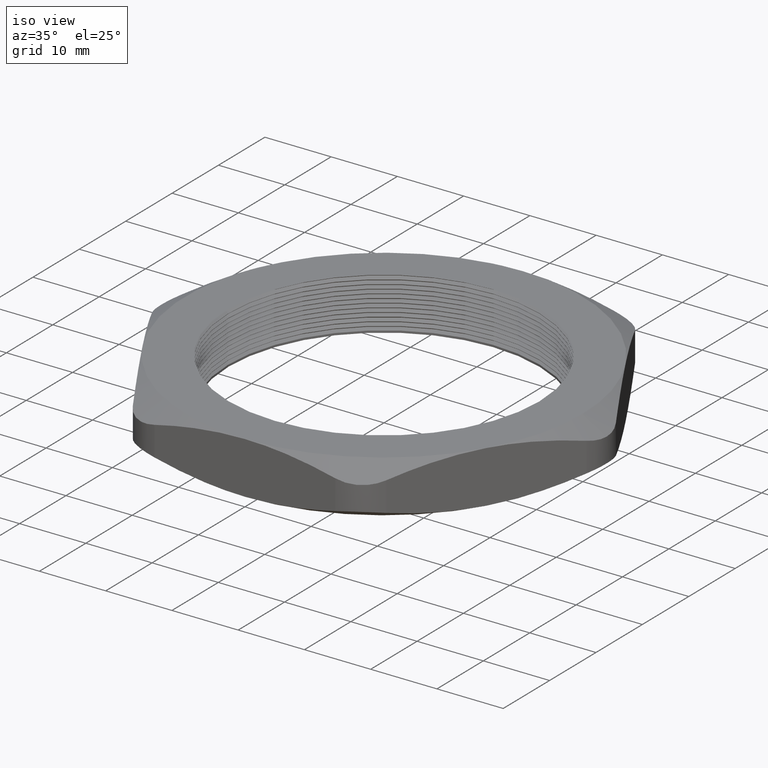
[diagram: clean part render]
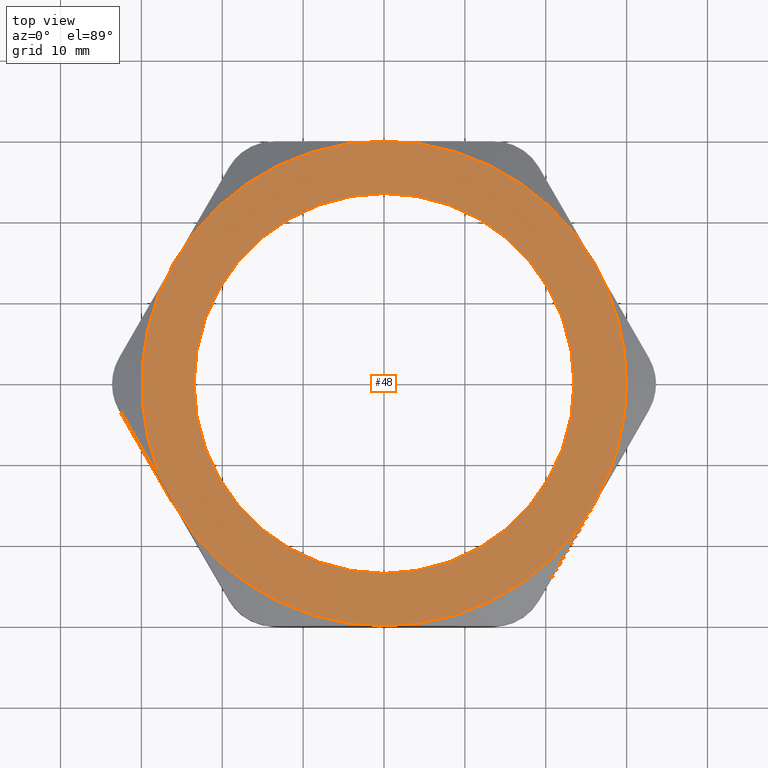
[diagram: tour spotlight — one face highlighted and labeled with its STEP entity id]
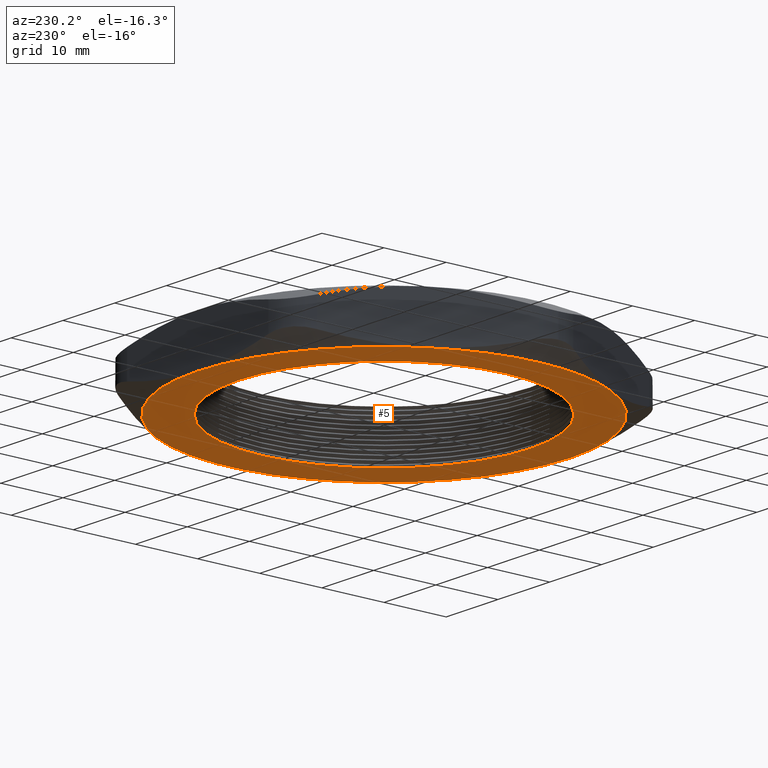
[diagram: tour spotlight — one face highlighted and labeled with its STEP entity id]
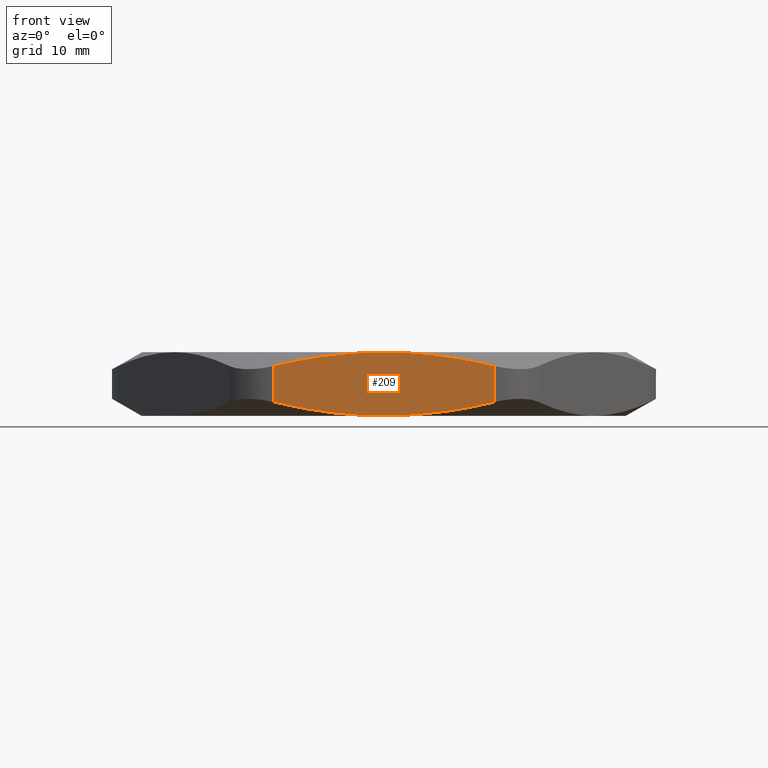
[diagram: tour spotlight — one face highlighted and labeled with its STEP entity id]
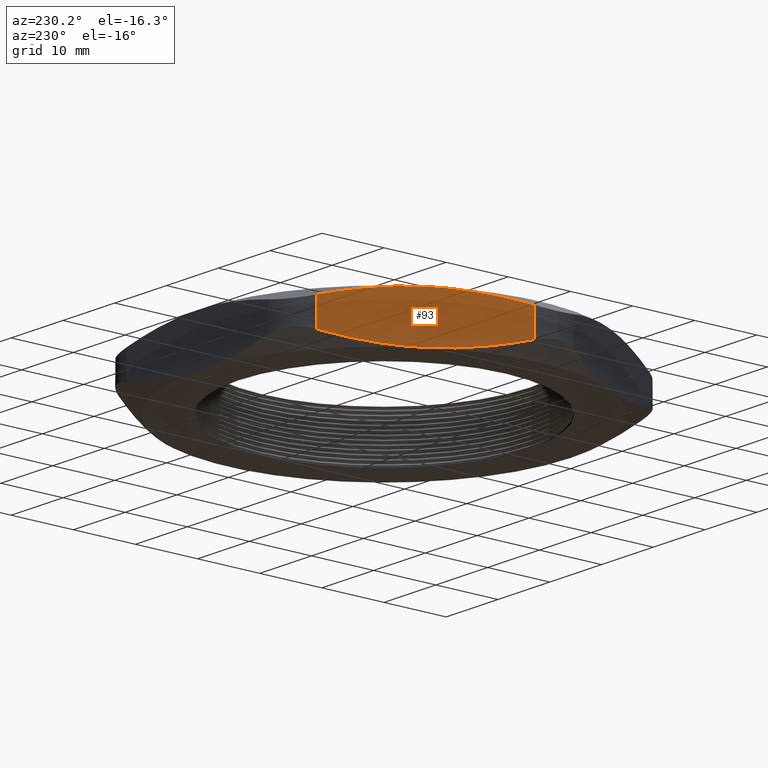
[diagram: tour spotlight — one face highlighted and labeled with its STEP entity id]
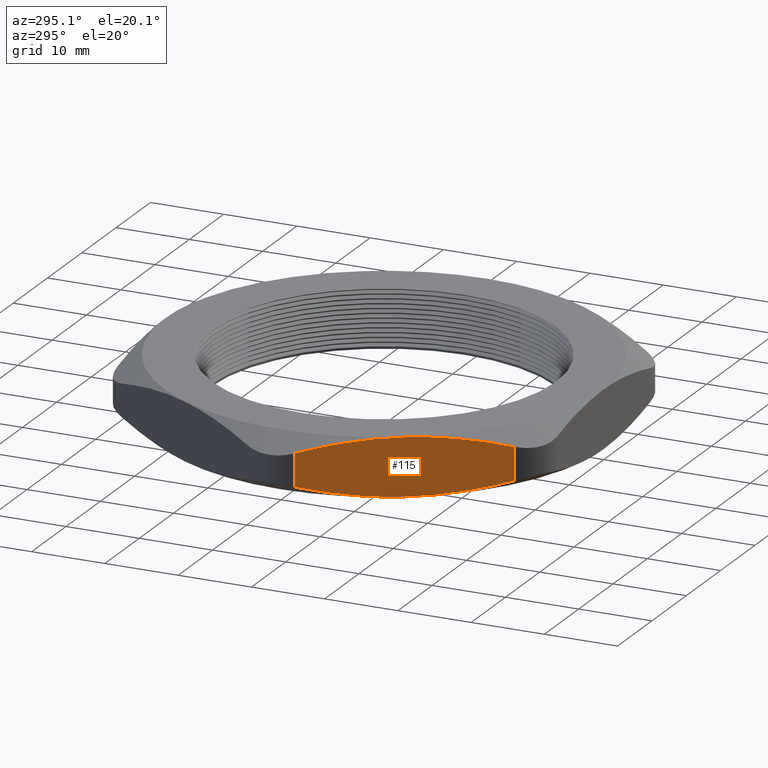
[diagram: tour spotlight — one face highlighted and labeled with its STEP entity id]
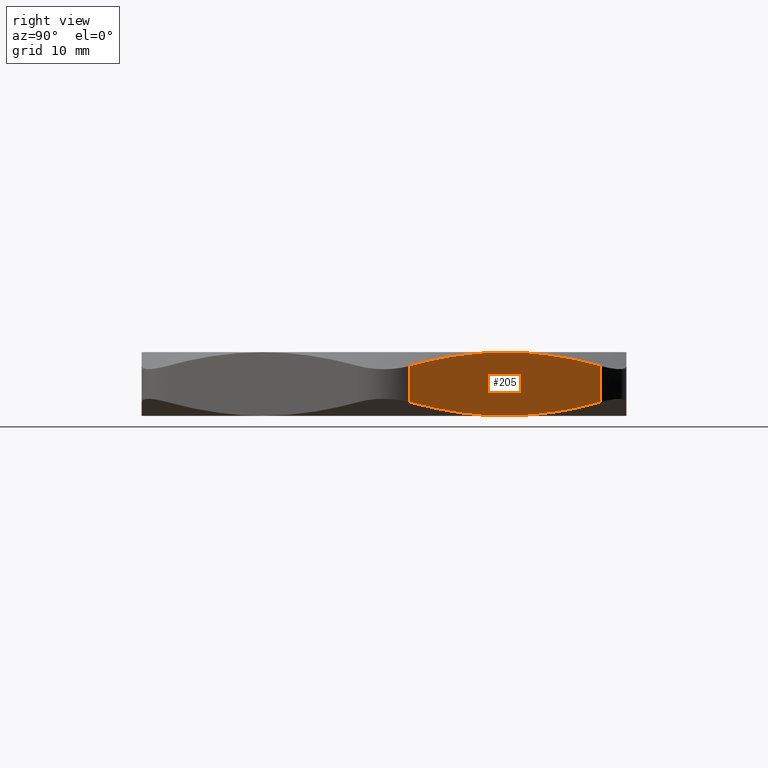
[diagram: tour spotlight — one face highlighted and labeled with its STEP entity id]
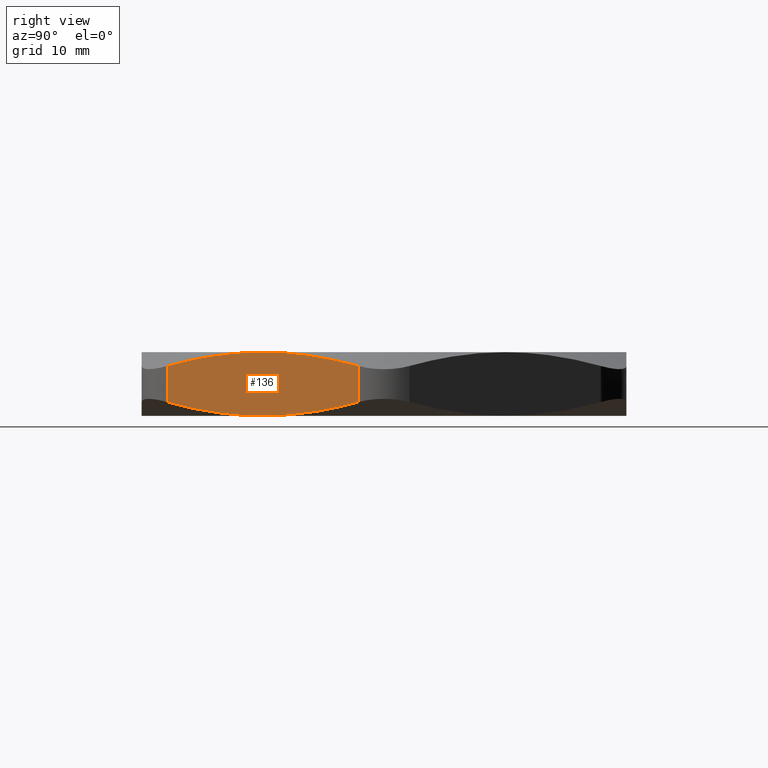
[diagram: tour spotlight — one face highlighted and labeled with its STEP entity id]
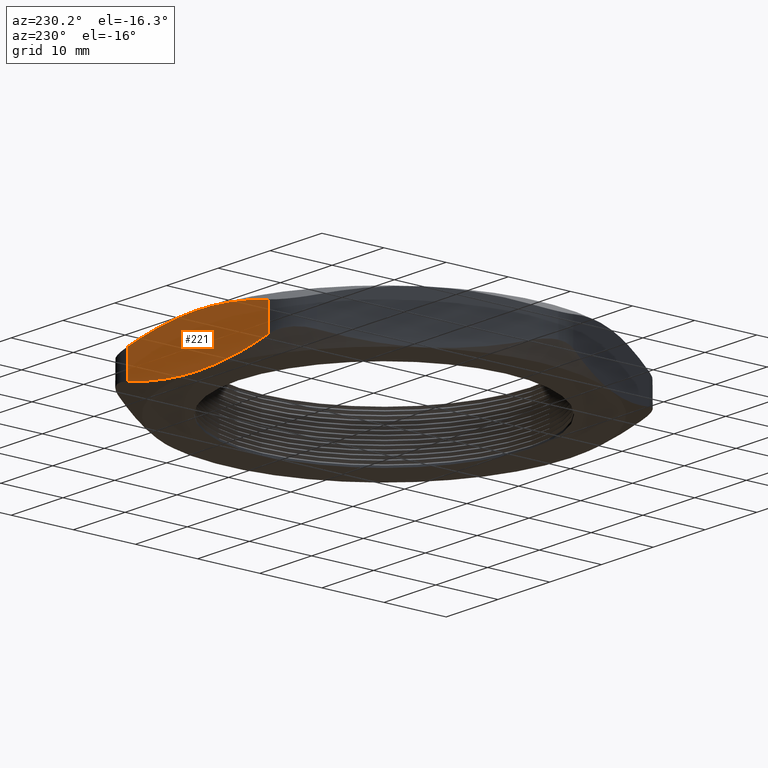
[diagram: tour spotlight — one face highlighted and labeled with its STEP entity id]
A machine part: a face-by-face anatomy tour. The part has 101 B-rep faces; the first image is the clean iso view, then the 8 largest visible faces are spotlighted one at a time (largest first), each with its STEP entity span.

Face 1 — top view, entity #48. In plain terms, the highlighted planar face has unit normal (0, 0, -1).
Definition (entity closure, byte-faithful):
#34 = ORIENTED_EDGE ( 'NONE', *, *, #36, .T. ) ;
#36 = EDGE_CURVE ( 'NONE', #146, #242, #711, .T. ) ;
#37 = ORIENTED_EDGE ( 'NONE', *, *, #38, .T. ) ;
#38 = EDGE_CURVE ( 'NONE', #76, #146, #693, .T. ) ;
#39 = EDGE_CURVE ( 'NONE', #216, #76, #688, .T. ) ;
#40 = EDGE_LOOP ( 'NONE', ( #41, #37, #34, #310, #67, #63, #65 ) ) ;
#41 = ORIENTED_EDGE ( 'NONE', *, *, #39, .T. ) ;
#42 = ORIENTED_EDGE ( 'NONE', *, *, #43, .F. ) ;
#43 = EDGE_CURVE ( 'NONE', #2820, #2819, #683, .T. ) ;
#48 = ADVANCED_FACE ( 'NONE', ( #735, #734 ), #733, .F. ) ;
#49 = EDGE_LOOP ( 'NONE', ( #50, #42 ) ) ;
#50 = ORIENTED_EDGE ( 'NONE', *, *, #2815, .F. ) ;
#62 = EDGE_CURVE ( 'NONE', #2813, #216, #762, .T. ) ;
#63 = ORIENTED_EDGE ( 'NONE', *, *, #2811, .T. ) ;
#65 = ORIENTED_EDGE ( 'NONE', *, *, #62, .T. ) ;
#67 = ORIENTED_EDGE ( 'NONE', *, *, #81, .T. ) ;
#76 = VERTEX_POINT ( 'NONE', #799 ) ;
#81 = EDGE_CURVE ( 'NONE', #145, #2812, #793, .T. ) ;
#145 = VERTEX_POINT ( 'NONE', #933 ) ;
#146 = VERTEX_POINT ( 'NONE', #935 ) ;
#216 = VERTEX_POINT ( 'NONE', #1134 ) ;
#242 = VERTEX_POINT ( 'NONE', #1185 ) ;
#310 = ORIENTED_EDGE ( 'NONE', *, *, #346, .T. ) ;
#346 = EDGE_CURVE ( 'NONE', #242, #145, #1390, .T. ) ;
#682 = AXIS2_PLACEMENT_3D ( 'NONE', #743, #742, #741 ) ;
#683 = CIRCLE ( 'NONE', #682, 0.9250000000000002700 ) ;
#684 = DIRECTION ( 'NONE',  ( 1.000000000000000000, 0.0000000000000000000, 0.0000000000000000000 ) ) ;
#685 = DIRECTION ( 'NONE',  ( 0.0000000000000000000, 0.0000000000000000000, 1.000000000000000000 ) ) ;
#686 = CARTESIAN_POINT ( 'NONE',  ( 0.0000000000000000000, 0.0000000000000000000, 0.3100000000000000000 ) ) ;
#687 = AXIS2_PLACEMENT_3D ( 'NONE', #686, #685, #684 ) ;
#688 = CIRCLE ( 'NONE', #687, 1.179999999999999900 ) ;
#689 = DIRECTION ( 'NONE',  ( 1.000000000000000000, 0.0000000000000000000, 0.0000000000000000000 ) ) ;
#690 = DIRECTION ( 'NONE',  ( 0.0000000000000000000, 0.0000000000000000000, 1.000000000000000000 ) ) ;
#691 = CARTESIAN_POINT ( 'NONE',  ( 0.0000000000000000000, 0.0000000000000000000, 0.3100000000000000000 ) ) ;
#692 = AXIS2_PLACEMENT_3D ( 'NONE', #691, #690, #689 ) ;
#693 = CIRCLE ( 'NONE', #692, 1.179999999999999900 ) ;
#708 = DIRECTION ( 'NONE',  ( 1.000000000000000000, 0.0000000000000000000, 0.0000000000000000000 ) ) ;
#709 = DIRECTION ( 'NONE',  ( 0.0000000000000000000, 0.0000000000000000000, 1.000000000000000000 ) ) ;
#710 = AXIS2_PLACEMENT_3D ( 'NONE', #713, #709, #708 ) ;
#711 = CIRCLE ( 'NONE', #710, 1.179999999999999900 ) ;
#713 = CARTESIAN_POINT ( 'NONE',  ( 0.0000000000000000000, 0.0000000000000000000, 0.3100000000000000000 ) ) ;
#729 = DIRECTION ( 'NONE',  ( -1.000000000000000000, 0.0000000000000000000, 0.0000000000000000000 ) ) ;
#730 = DIRECTION ( 'NONE',  ( 0.0000000000000000000, 0.0000000000000000000, -1.000000000000000000 ) ) ;
#731 = CARTESIAN_POINT ( 'NONE',  ( 5.463695987328526400E-016, 2.359999999999999900, 0.3100000000000000000 ) ) ;
#732 = AXIS2_PLACEMENT_3D ( 'NONE', #731, #730, #729 ) ;
#733 = PLANE ( 'NONE',  #732 ) ;
#734 = FACE_OUTER_BOUND ( 'NONE', #40, .T. ) ;
#735 = FACE_BOUND ( 'NONE', #49, .T. ) ;
#741 = DIRECTION ( 'NONE',  ( 1.000000000000000000, 0.0000000000000000000, 0.0000000000000000000 ) ) ;
#742 = DIRECTION ( 'NONE',  ( 0.0000000000000000000, 0.0000000000000000000, 1.000000000000000000 ) ) ;
#743 = CARTESIAN_POINT ( 'NONE',  ( 0.0000000000000000000, 0.0000000000000000000, 0.3100000000000000000 ) ) ;
#758 = DIRECTION ( 'NONE',  ( 1.000000000000000000, 0.0000000000000000000, 0.0000000000000000000 ) ) ;
#759 = DIRECTION ( 'NONE',  ( 0.0000000000000000000, 0.0000000000000000000, 1.000000000000000000 ) ) ;
#760 = CARTESIAN_POINT ( 'NONE',  ( 0.0000000000000000000, 0.0000000000000000000, 0.3100000000000000000 ) ) ;
#761 = AXIS2_PLACEMENT_3D ( 'NONE', #760, #759, #758 ) ;
#762 = CIRCLE ( 'NONE', #761, 1.179999999999999900 ) ;
#789 = DIRECTION ( 'NONE',  ( 1.000000000000000000, 0.0000000000000000000, 0.0000000000000000000 ) ) ;
#790 = DIRECTION ( 'NONE',  ( 0.0000000000000000000, 0.0000000000000000000, 1.000000000000000000 ) ) ;
#791 = CARTESIAN_POINT ( 'NONE',  ( 0.0000000000000000000, 0.0000000000000000000, 0.3100000000000000000 ) ) ;
#792 = AXIS2_PLACEMENT_3D ( 'NONE', #791, #790, #789 ) ;
#793 = CIRCLE ( 'NONE', #792, 1.179999999999999900 ) ;
#799 = CARTESIAN_POINT ( 'NONE',  ( -1.021909976465637600, 0.5900000000000003000, 0.3100000000000000000 ) ) ;
#933 = CARTESIAN_POINT ( 'NONE',  ( 1.021909976465637600, -0.5899999999999999700, 0.3100000000000000000 ) ) ;
#935 = CARTESIAN_POINT ( 'NONE',  ( -1.021909976465638300, -0.5899999999999997500, 0.3100000000000000000 ) ) ;
#1134 = CARTESIAN_POINT ( 'NONE',  ( 2.365849761790801500E-016, 1.179999999999999900, 0.3100000000000000000 ) ) ;
#1185 = CARTESIAN_POINT ( 'NONE',  ( 0.0000000000000000000, -1.179999999999999700, 0.3100000000000000000 ) ) ;
#1386 = DIRECTION ( 'NONE',  ( 1.000000000000000000, 0.0000000000000000000, 0.0000000000000000000 ) ) ;
#1387 = DIRECTION ( 'NONE',  ( 0.0000000000000000000, 0.0000000000000000000, 1.000000000000000000 ) ) ;
#1388 = CARTESIAN_POINT ( 'NONE',  ( 0.0000000000000000000, 0.0000000000000000000, 0.3100000000000000000 ) ) ;
#1389 = AXIS2_PLACEMENT_3D ( 'NONE', #1388, #1387, #1386 ) ;
#1390 = CIRCLE ( 'NONE', #1389, 1.179999999999999900 ) ;
#2400 = AXIS2_PLACEMENT_3D ( 'NONE', #2457, #2456, #2455 ) ;
#2403 = CIRCLE ( 'NONE', #2400, 1.179999999999999900 ) ;
#2441 = CARTESIAN_POINT ( 'NONE',  ( 0.9250000000000002700, 1.145044757202775500E-016, 0.3100000000000000000 ) ) ;
#2442 = CARTESIAN_POINT ( 'NONE',  ( -0.9250000000000002700, 0.0000000000000000000, 0.3100000000000000000 ) ) ;
#2448 = DIRECTION ( 'NONE',  ( 1.000000000000000000, 0.0000000000000000000, 0.0000000000000000000 ) ) ;
#2449 = DIRECTION ( 'NONE',  ( 0.0000000000000000000, 0.0000000000000000000, 1.000000000000000000 ) ) ;
#2450 = CARTESIAN_POINT ( 'NONE',  ( 0.0000000000000000000, 0.0000000000000000000, 0.3100000000000000000 ) ) ;
#2451 = AXIS2_PLACEMENT_3D ( 'NONE', #2450, #2449, #2448 ) ;
#2452 = CIRCLE ( 'NONE', #2451, 0.9250000000000002700 ) ;
#2453 = CARTESIAN_POINT ( 'NONE',  ( 1.021909976465637600, 0.5899999999999999700, 0.3100000000000000000 ) ) ;
#2454 = CARTESIAN_POINT ( 'NONE',  ( 1.179999999999999900, 0.0000000000000000000, 0.3100000000000000000 ) ) ;
#2455 = DIRECTION ( 'NONE',  ( 1.000000000000000000, 0.0000000000000000000, 0.0000000000000000000 ) ) ;
#2456 = DIRECTION ( 'NONE',  ( 0.0000000000000000000, 0.0000000000000000000, 1.000000000000000000 ) ) ;
#2457 = CARTESIAN_POINT ( 'NONE',  ( 0.0000000000000000000, 0.0000000000000000000, 0.3100000000000000000 ) ) ;
#2811 = EDGE_CURVE ( 'NONE', #2812, #2813, #2403, .T. ) ;
#2812 = VERTEX_POINT ( 'NONE', #2454 ) ;
#2813 = VERTEX_POINT ( 'NONE', #2453 ) ;
#2815 = EDGE_CURVE ( 'NONE', #2819, #2820, #2452, .T. ) ;
#2819 = VERTEX_POINT ( 'NONE', #2442 ) ;
#2820 = VERTEX_POINT ( 'NONE', #2441 ) ;

Face 2 — auxiliary view, entity #5. In plain terms, the highlighted planar face has unit normal (0, 0, -1).
Definition (entity closure, byte-faithful):
#5 = ADVANCED_FACE ( 'NONE', ( #605, #604 ), #602, .T. ) ;
#7 = ORIENTED_EDGE ( 'NONE', *, *, #2898, .T. ) ;
#10 = ORIENTED_EDGE ( 'NONE', *, *, #168, .T. ) ;
#17 = ORIENTED_EDGE ( 'NONE', *, *, #1650, .T. ) ;
#18 = EDGE_LOOP ( 'NONE', ( #7, #10 ) ) ;
#21 = EDGE_CURVE ( 'NONE', #129, #361, #632, .T. ) ;
#22 = EDGE_LOOP ( 'NONE', ( #23, #17, #397, #314, #312, #309, #54 ) ) ;
#23 = ORIENTED_EDGE ( 'NONE', *, *, #21, .T. ) ;
#54 = ORIENTED_EDGE ( 'NONE', *, *, #55, .T. ) ;
#55 = EDGE_CURVE ( 'NONE', #236, #129, #728, .T. ) ;
#129 = VERTEX_POINT ( 'NONE', #921 ) ;
#149 = VERTEX_POINT ( 'NONE', #971 ) ;
#156 = VERTEX_POINT ( 'NONE', #961 ) ;
#168 = EDGE_CURVE ( 'NONE', #2901, #2897, #994, .T. ) ;
#231 = VERTEX_POINT ( 'NONE', #1157 ) ;
#236 = VERTEX_POINT ( 'NONE', #1148 ) ;
#308 = EDGE_CURVE ( 'NONE', #231, #156, #1351, .T. ) ;
#309 = ORIENTED_EDGE ( 'NONE', *, *, #311, .T. ) ;
#311 = EDGE_CURVE ( 'NONE', #156, #236, #1346, .T. ) ;
#312 = ORIENTED_EDGE ( 'NONE', *, *, #308, .T. ) ;
#313 = EDGE_CURVE ( 'NONE', #149, #231, #1341, .T. ) ;
#314 = ORIENTED_EDGE ( 'NONE', *, *, #313, .T. ) ;
#315 = EDGE_CURVE ( 'NONE', #2800, #149, #1336, .T. ) ;
#361 = VERTEX_POINT ( 'NONE', #1477 ) ;
#397 = ORIENTED_EDGE ( 'NONE', *, *, #315, .T. ) ;
#589 = AXIS2_PLACEMENT_3D ( 'NONE', #601, #600, #645 ) ;
#600 = DIRECTION ( 'NONE',  ( 0.0000000000000000000, 0.0000000000000000000, -1.000000000000000000 ) ) ;
#601 = CARTESIAN_POINT ( 'NONE',  ( 5.463695987328526400E-016, 2.359999999999999900, 0.0000000000000000000 ) ) ;
#602 = PLANE ( 'NONE',  #589 ) ;
#604 = FACE_OUTER_BOUND ( 'NONE', #22, .T. ) ;
#605 = FACE_BOUND ( 'NONE', #18, .T. ) ;
#631 = AXIS2_PLACEMENT_3D ( 'NONE', #681, #680, #679 ) ;
#632 = CIRCLE ( 'NONE', #631, 1.179999999999999700 ) ;
#645 = DIRECTION ( 'NONE',  ( -1.000000000000000000, 0.0000000000000000000, 0.0000000000000000000 ) ) ;
#679 = DIRECTION ( 'NONE',  ( -1.000000000000000000, 0.0000000000000000000, 0.0000000000000000000 ) ) ;
#680 = DIRECTION ( 'NONE',  ( 0.0000000000000000000, 0.0000000000000000000, -1.000000000000000000 ) ) ;
#681 = CARTESIAN_POINT ( 'NONE',  ( 0.0000000000000000000, 0.0000000000000000000, 0.0000000000000000000 ) ) ;
#724 = DIRECTION ( 'NONE',  ( -1.000000000000000000, 0.0000000000000000000, 0.0000000000000000000 ) ) ;
#725 = DIRECTION ( 'NONE',  ( 0.0000000000000000000, 0.0000000000000000000, -1.000000000000000000 ) ) ;
#726 = CARTESIAN_POINT ( 'NONE',  ( 0.0000000000000000000, 0.0000000000000000000, 0.0000000000000000000 ) ) ;
#727 = AXIS2_PLACEMENT_3D ( 'NONE', #726, #725, #724 ) ;
#728 = CIRCLE ( 'NONE', #727, 1.179999999999999700 ) ;
#921 = CARTESIAN_POINT ( 'NONE',  ( -1.021909976465637600, -0.5899999999999994100, 0.0000000000000000000 ) ) ;
#961 = CARTESIAN_POINT ( 'NONE',  ( 1.021909976465637400, -0.5899999999999999700, 0.0000000000000000000 ) ) ;
#971 = CARTESIAN_POINT ( 'NONE',  ( 2.365849761790801000E-016, 1.179999999999999900, 0.0000000000000000000 ) ) ;
#990 = DIRECTION ( 'NONE',  ( 1.000000000000000000, 0.0000000000000000000, 0.0000000000000000000 ) ) ;
#991 = DIRECTION ( 'NONE',  ( 0.0000000000000000000, 0.0000000000000000000, 1.000000000000000000 ) ) ;
#992 = CARTESIAN_POINT ( 'NONE',  ( 0.0000000000000000000, 0.0000000000000000000, 0.0000000000000000000 ) ) ;
#993 = AXIS2_PLACEMENT_3D ( 'NONE', #992, #991, #990 ) ;
#994 = CIRCLE ( 'NONE', #993, 0.9250000000000002700 ) ;
#1148 = CARTESIAN_POINT ( 'NONE',  ( 0.0000000000000000000, -1.179999999999999900, 0.0000000000000000000 ) ) ;
#1157 = CARTESIAN_POINT ( 'NONE',  ( 1.021909976465637600, 0.5899999999999998600, 0.0000000000000000000 ) ) ;
#1332 = DIRECTION ( 'NONE',  ( -1.000000000000000000, 0.0000000000000000000, 0.0000000000000000000 ) ) ;
#1333 = DIRECTION ( 'NONE',  ( 0.0000000000000000000, 0.0000000000000000000, -1.000000000000000000 ) ) ;
#1334 = CARTESIAN_POINT ( 'NONE',  ( 0.0000000000000000000, 0.0000000000000000000, 0.0000000000000000000 ) ) ;
#1335 = AXIS2_PLACEMENT_3D ( 'NONE', #1334, #1333, #1332 ) ;
#1336 = CIRCLE ( 'NONE', #1335, 1.179999999999999900 ) ;
#1337 = DIRECTION ( 'NONE',  ( -1.000000000000000000, 0.0000000000000000000, 0.0000000000000000000 ) ) ;
#1338 = DIRECTION ( 'NONE',  ( 0.0000000000000000000, 0.0000000000000000000, -1.000000000000000000 ) ) ;
#1339 = CARTESIAN_POINT ( 'NONE',  ( 0.0000000000000000000, 0.0000000000000000000, 0.0000000000000000000 ) ) ;
#1340 = AXIS2_PLACEMENT_3D ( 'NONE', #1339, #1338, #1337 ) ;
#1341 = CIRCLE ( 'NONE', #1340, 1.179999999999999700 ) ;
#1342 = DIRECTION ( 'NONE',  ( -1.000000000000000000, 0.0000000000000000000, 0.0000000000000000000 ) ) ;
#1343 = DIRECTION ( 'NONE',  ( 0.0000000000000000000, 0.0000000000000000000, -1.000000000000000000 ) ) ;
#1344 = CARTESIAN_POINT ( 'NONE',  ( 0.0000000000000000000, 0.0000000000000000000, 0.0000000000000000000 ) ) ;
#1345 = AXIS2_PLACEMENT_3D ( 'NONE', #1344, #1343, #1342 ) ;
#1346 = CIRCLE ( 'NONE', #1345, 1.179999999999999700 ) ;
#1347 = DIRECTION ( 'NONE',  ( -1.000000000000000000, 0.0000000000000000000, 0.0000000000000000000 ) ) ;
#1348 = DIRECTION ( 'NONE',  ( 0.0000000000000000000, 0.0000000000000000000, -1.000000000000000000 ) ) ;
#1349 = CARTESIAN_POINT ( 'NONE',  ( 0.0000000000000000000, 0.0000000000000000000, 0.0000000000000000000 ) ) ;
#1350 = AXIS2_PLACEMENT_3D ( 'NONE', #1349, #1348, #1347 ) ;
#1351 = CIRCLE ( 'NONE', #1350, 1.179999999999999700 ) ;
#1477 = CARTESIAN_POINT ( 'NONE',  ( -1.179999999999999700, 0.0000000000000000000, 0.0000000000000000000 ) ) ;
#1650 = EDGE_CURVE ( 'NONE', #361, #2800, #1847, .T. ) ;
#1843 = DIRECTION ( 'NONE',  ( -1.000000000000000000, 0.0000000000000000000, 0.0000000000000000000 ) ) ;
#1844 = DIRECTION ( 'NONE',  ( 0.0000000000000000000, 0.0000000000000000000, -1.000000000000000000 ) ) ;
#1845 = CARTESIAN_POINT ( 'NONE',  ( 0.0000000000000000000, 0.0000000000000000000, 0.0000000000000000000 ) ) ;
#1846 = AXIS2_PLACEMENT_3D ( 'NONE', #1845, #1844, #1843 ) ;
#1847 = CIRCLE ( 'NONE', #1846, 1.179999999999999700 ) ;
#2369 = CARTESIAN_POINT ( 'NONE',  ( -1.021909976465637400, 0.5900000000000000800, 0.0000000000000000000 ) ) ;
#2594 = CARTESIAN_POINT ( 'NONE',  ( 0.9250000000000002700, 1.132798289211302000E-016, 0.0000000000000000000 ) ) ;
#2599 = DIRECTION ( 'NONE',  ( 1.000000000000000000, 0.0000000000000000000, 0.0000000000000000000 ) ) ;
#2600 = DIRECTION ( 'NONE',  ( 0.0000000000000000000, 0.0000000000000000000, 1.000000000000000000 ) ) ;
#2601 = CARTESIAN_POINT ( 'NONE',  ( 0.0000000000000000000, 0.0000000000000000000, 0.0000000000000000000 ) ) ;
#2602 = AXIS2_PLACEMENT_3D ( 'NONE', #2601, #2600, #2599 ) ;
#2603 = CIRCLE ( 'NONE', #2602, 0.9250000000000002700 ) ;
#2604 = CARTESIAN_POINT ( 'NONE',  ( -0.9250000000000002700, 0.0000000000000000000, 0.0000000000000000000 ) ) ;
#2800 = VERTEX_POINT ( 'NONE', #2369 ) ;
#2897 = VERTEX_POINT ( 'NONE', #2604 ) ;
#2898 = EDGE_CURVE ( 'NONE', #2897, #2901, #2603, .T. ) ;
#2901 = VERTEX_POINT ( 'NONE', #2594 ) ;

Face 3 — front view, entity #209. In plain terms, the highlighted planar face has unit normal (0, 1, 0).
Definition (entity closure, byte-faithful):
#132 = EDGE_CURVE ( 'NONE', #222, #133, #909, .T. ) ;
#133 = VERTEX_POINT ( 'NONE', #905 ) ;
#134 = ORIENTED_EDGE ( 'NONE', *, *, #135, .F. ) ;
#135 = EDGE_CURVE ( 'NONE', #236, #133, #903, .T. ) ;
#147 = ORIENTED_EDGE ( 'NONE', *, *, #132, .T. ) ;
#209 = ADVANCED_FACE ( 'NONE', ( #1094 ), #1092, .F. ) ;
#210 = EDGE_LOOP ( 'NONE', ( #233, #237, #240, #243, #147, #134 ) ) ;
#222 = VERTEX_POINT ( 'NONE', #1120 ) ;
#233 = ORIENTED_EDGE ( 'NONE', *, *, #234, .F. ) ;
#234 = EDGE_CURVE ( 'NONE', #235, #236, #1147, .T. ) ;
#235 = VERTEX_POINT ( 'NONE', #1146 ) ;
#236 = VERTEX_POINT ( 'NONE', #1148 ) ;
#237 = ORIENTED_EDGE ( 'NONE', *, *, #238, .T. ) ;
#238 = EDGE_CURVE ( 'NONE', #235, #239, #1190, .T. ) ;
#239 = VERTEX_POINT ( 'NONE', #1201 ) ;
#240 = ORIENTED_EDGE ( 'NONE', *, *, #241, .F. ) ;
#241 = EDGE_CURVE ( 'NONE', #242, #239, #1186, .T. ) ;
#242 = VERTEX_POINT ( 'NONE', #1185 ) ;
#243 = ORIENTED_EDGE ( 'NONE', *, *, #244, .F. ) ;
#244 = EDGE_CURVE ( 'NONE', #222, #242, #1183, .T. ) ;
#903 = B_SPLINE_CURVE_WITH_KNOTS ( 'NONE', 3,
 ( #953, #952, #951, #950, #949, #948 ),
 .UNSPECIFIED., .F., .F.,
 ( 4, 2, 4 ),
 ( 0.09629130399386136300, 0.1031685698336616300, 0.1100458356734618900 ),
 .UNSPECIFIED. ) ;
#905 = CARTESIAN_POINT ( 'NONE',  ( -0.5369357503463528800, -1.179999999999999700, 0.06721404586569536300 ) ) ;
#906 = DIRECTION ( 'NONE',  ( 0.0000000000000000000, 0.0000000000000000000, -1.000000000000000000 ) ) ;
#907 = VECTOR ( 'NONE', #906, 39.37007874015748100 ) ;
#908 = CARTESIAN_POINT ( 'NONE',  ( -0.5369357503463528800, -1.179999999999999700, 0.3100000000000000000 ) ) ;
#909 = LINE ( 'NONE', #908, #907 ) ;
#948 = CARTESIAN_POINT ( 'NONE',  ( -0.5369357503463528800, -1.179999999999999700, 0.06721404586569536300 ) ) ;
#949 = CARTESIAN_POINT ( 'NONE',  ( -0.4483414298501932100, -1.179999999999999700, 0.04602933820454875600 ) ) ;
#950 = CARTESIAN_POINT ( 'NONE',  ( -0.3592866603776257400, -1.179999999999999500, 0.02909769553479347000 ) ) ;
#951 = CARTESIAN_POINT ( 'NONE',  ( -0.1803601917602110100, -1.179999999999999700, 0.006070318766113876200 ) ) ;
#952 = CARTESIAN_POINT ( 'NONE',  ( -0.09043671930198121700, -1.179999999999999300, -7.143088870152403800E-017 ) ) ;
#953 = CARTESIAN_POINT ( 'NONE',  ( 0.0000000000000000000, -1.179999999999999900, 0.0000000000000000000 ) ) ;
#1079 = DIRECTION ( 'NONE',  ( 0.0000000000000000000, 0.0000000000000000000, 1.000000000000000000 ) ) ;
#1080 = DIRECTION ( 'NONE',  ( 0.0000000000000000000, 1.000000000000000000, 0.0000000000000000000 ) ) ;
#1081 = CARTESIAN_POINT ( 'NONE',  ( -0.6812733176437593100, -1.179999999999999700, 0.3100000000000000000 ) ) ;
#1082 = AXIS2_PLACEMENT_3D ( 'NONE', #1081, #1080, #1079 ) ;
#1092 = PLANE ( 'NONE',  #1082 ) ;
#1094 = FACE_OUTER_BOUND ( 'NONE', #210, .T. ) ;
#1120 = CARTESIAN_POINT ( 'NONE',  ( -0.5369357503463528800, -1.179999999999999700, 0.2427859541343046200 ) ) ;
#1146 = CARTESIAN_POINT ( 'NONE',  ( 0.5369357503463518800, -1.179999999999999700, 0.06721404586569509900 ) ) ;
#1147 = B_SPLINE_CURVE_WITH_KNOTS ( 'NONE', 3,
 ( #1200, #1199, #1198, #1197, #1196, #1195, #1194, #1193, #1192, #1191 ),
 .UNSPECIFIED., .F., .F.,
 ( 4, 2, 2, 2, 4 ),
 ( 0.08256158071007031800, 0.08942644235196584000, 0.09114265776243972400, 0.09285887317291360900, 0.09629130399386136300 ),
 .UNSPECIFIED. ) ;
#1148 = CARTESIAN_POINT ( 'NONE',  ( 0.0000000000000000000, -1.179999999999999900, 0.0000000000000000000 ) ) ;
#1173 = CARTESIAN_POINT ( 'NONE',  ( 0.5369357503463519900, -1.179999999999999700, 0.2427859541343048700 ) ) ;
#1174 = CARTESIAN_POINT ( 'NONE',  ( 0.4496078843158085000, -1.179999999999999500, 0.2636678267212618200 ) ) ;
#1175 = CARTESIAN_POINT ( 'NONE',  ( 0.3612328827273920700, -1.179999999999999700, 0.2805846981284186300 ) ) ;
#1176 = CARTESIAN_POINT ( 'NONE',  ( 0.2490155983969231100, -1.180000000000000200, 0.2951099322759934700 ) ) ;
#1177 = CARTESIAN_POINT ( 'NONE',  ( 0.2264847364175539300, -1.179999999999999700, 0.2976840177751897100 ) ) ;
#1178 = CARTESIAN_POINT ( 'NONE',  ( 0.1812379093706507900, -1.179999999999999900, 0.3021312919723613800 ) ) ;
#1179 = CARTESIAN_POINT ( 'NONE',  ( 0.1584856043575892400, -1.179999999999999900, 0.3040059380878365500 ) ) ;
#1180 = CARTESIAN_POINT ( 'NONE',  ( 0.09040044257329518700, -1.179999999999999500, 0.3084998303428697600 ) ) ;
#1181 = CARTESIAN_POINT ( 'NONE',  ( 0.04513680144237913100, -1.179999999999999000, 0.3099999999999998900 ) ) ;
#1182 = CARTESIAN_POINT ( 'NONE',  ( 0.0000000000000000000, -1.179999999999999700, 0.3100000000000000000 ) ) ;
#1183 = B_SPLINE_CURVE_WITH_KNOTS ( 'NONE', 3,
 ( #1226, #1225, #1224, #1223, #1222, #1221 ),
 .UNSPECIFIED., .F., .F.,
 ( 4, 2, 4 ),
 ( 0.03544491569854258500, 0.04231837440336419500, 0.04919183310818579800 ),
 .UNSPECIFIED. ) ;
#1185 = CARTESIAN_POINT ( 'NONE',  ( 0.0000000000000000000, -1.179999999999999700, 0.3100000000000000000 ) ) ;
#1186 = B_SPLINE_CURVE_WITH_KNOTS ( 'NONE', 3,
 ( #1182, #1181, #1180, #1179, #1178, #1177, #1176, #1175, #1174, #1173 ),
 .UNSPECIFIED., .F., .F.,
 ( 4, 2, 2, 2, 4 ),
 ( 0.04919183310818579800, 0.05262236379501854200, 0.05433762913843491500, 0.05605289448185128700, 0.06291395585551677600 ),
 .UNSPECIFIED. ) ;
#1187 = DIRECTION ( 'NONE',  ( 0.0000000000000000000, 0.0000000000000000000, 1.000000000000000000 ) ) ;
#1188 = VECTOR ( 'NONE', #1187, 39.37007874015748100 ) ;
#1189 = CARTESIAN_POINT ( 'NONE',  ( 0.5369357503463519900, -1.179999999999999700, 0.3100000000000000000 ) ) ;
#1190 = LINE ( 'NONE', #1189, #1188 ) ;
#1191 = CARTESIAN_POINT ( 'NONE',  ( 0.0000000000000000000, -1.179999999999999900, 0.0000000000000000000 ) ) ;
#1192 = CARTESIAN_POINT ( 'NONE',  ( 0.04513680144237901300, -1.179999999999999500, -8.156860586551255200E-017 ) ) ;
#1193 = CARTESIAN_POINT ( 'NONE',  ( 0.09040044257329479800, -1.180000000000000200, 0.001500169657130145600 ) ) ;
#1194 = CARTESIAN_POINT ( 'NONE',  ( 0.1584856043575889100, -1.179999999999999900, 0.005994061912163378000 ) ) ;
#1195 = CARTESIAN_POINT ( 'NONE',  ( 0.1812379093706506000, -1.179999999999999900, 0.007868708027638626100 ) ) ;
#1196 = CARTESIAN_POINT ( 'NONE',  ( 0.2264847364175536500, -1.179999999999999700, 0.01231598222481027200 ) ) ;
#1197 = CARTESIAN_POINT ( 'NONE',  ( 0.2490155983969231100, -1.179999999999999900, 0.01489006772400662900 ) ) ;
#1198 = CARTESIAN_POINT ( 'NONE',  ( 0.3612328827273920100, -1.179999999999999500, 0.02941530187158133300 ) ) ;
#1199 = CARTESIAN_POINT ( 'NONE',  ( 0.4496078843158083400, -1.179999999999999500, 0.04633217327873817600 ) ) ;
#1200 = CARTESIAN_POINT ( 'NONE',  ( 0.5369357503463518800, -1.179999999999999700, 0.06721404586569509900 ) ) ;
#1201 = CARTESIAN_POINT ( 'NONE',  ( 0.5369357503463519900, -1.179999999999999700, 0.2427859541343048700 ) ) ;
#1221 = CARTESIAN_POINT ( 'NONE',  ( 0.0000000000000000000, -1.179999999999999700, 0.3100000000000000000 ) ) ;
#1222 = CARTESIAN_POINT ( 'NONE',  ( -0.09043671930198105000, -1.179999999999999700, 0.3100000000000001100 ) ) ;
#1223 = CARTESIAN_POINT ( 'NONE',  ( -0.1803601917602105600, -1.179999999999999500, 0.3039296812338860800 ) ) ;
#1224 = CARTESIAN_POINT ( 'NONE',  ( -0.3592866603776253600, -1.179999999999999700, 0.2809023044652065900 ) ) ;
#1225 = CARTESIAN_POINT ( 'NONE',  ( -0.4483414298501926500, -1.179999999999999300, 0.2639706617954512600 ) ) ;
#1226 = CARTESIAN_POINT ( 'NONE',  ( -0.5369357503463528800, -1.179999999999999700, 0.2427859541343046200 ) ) ;

Face 4 — auxiliary view, entity #93. In plain terms, the highlighted planar face has unit normal (0.866, -0.5, 0).
Definition (entity closure, byte-faithful):
#76 = VERTEX_POINT ( 'NONE', #799 ) ;
#77 = ORIENTED_EDGE ( 'NONE', *, *, #85, .T. ) ;
#82 = VERTEX_POINT ( 'NONE', #788 ) ;
#83 = ORIENTED_EDGE ( 'NONE', *, *, #84, .F. ) ;
#84 = EDGE_CURVE ( 'NONE', #76, #82, #787, .T. ) ;
#85 = EDGE_CURVE ( 'NONE', #2805, #82, #786, .T. ) ;
#87 = EDGE_LOOP ( 'NONE', ( #88, #77, #83, #611, #615, #120 ) ) ;
#88 = ORIENTED_EDGE ( 'NONE', *, *, #2807, .F. ) ;
#93 = ADVANCED_FACE ( 'NONE', ( #825 ), #824, .F. ) ;
#118 = EDGE_CURVE ( 'NONE', #2800, #613, #896, .T. ) ;
#120 = ORIENTED_EDGE ( 'NONE', *, *, #118, .F. ) ;
#611 = ORIENTED_EDGE ( 'NONE', *, *, #614, .F. ) ;
#612 = EDGE_CURVE ( 'NONE', #616, #613, #1803, .T. ) ;
#613 = VERTEX_POINT ( 'NONE', #1795 ) ;
#614 = EDGE_CURVE ( 'NONE', #616, #76, #1794, .T. ) ;
#615 = ORIENTED_EDGE ( 'NONE', *, *, #612, .T. ) ;
#616 = VERTEX_POINT ( 'NONE', #1793 ) ;
#779 = CARTESIAN_POINT ( 'NONE',  ( -1.135048905416904000, 0.3940376267424819900, 0.2980438790977818500 ) ) ;
#780 = CARTESIAN_POINT ( 'NONE',  ( -1.112573565966476800, 0.4329660565879782700, 0.3024908025705307400 ) ) ;
#781 = CARTESIAN_POINT ( 'NONE',  ( -1.067381612085253100, 0.5112408168035678100, 0.3084714449772216800 ) ) ;
#782 = CARTESIAN_POINT ( 'NONE',  ( -1.044586880877923100, 0.5507224493995394000, 0.3099999999999997200 ) ) ;
#783 = CARTESIAN_POINT ( 'NONE',  ( -1.021909976465637600, 0.5900000000000003000, 0.3100000000000000000 ) ) ;
#784 = DIRECTION ( 'NONE',  ( 0.0000000000000000000, 0.0000000000000000000, 1.000000000000000000 ) ) ;
#785 = CARTESIAN_POINT ( 'NONE',  ( -1.290377851638813800, 0.1250000000000003100, 0.3100000000000000000 ) ) ;
#786 = LINE ( 'NONE', #785, #837 ) ;
#787 = B_SPLINE_CURVE_WITH_KNOTS ( 'NONE', 3,
 ( #783, #782, #781, #780, #779, #840, #839, #838 ),
 .UNSPECIFIED., .F., .F.,
 ( 4, 2, 2, 4 ),
 ( 0.01750939737440081900, 0.02093024688783881600, 0.02435109640127681000, 0.03119279542815280700 ),
 .UNSPECIFIED. ) ;
#788 = CARTESIAN_POINT ( 'NONE',  ( -1.290377851638813800, 0.1250000000000001100, 0.2427859541343045900 ) ) ;
#799 = CARTESIAN_POINT ( 'NONE',  ( -1.021909976465637600, 0.5900000000000003000, 0.3100000000000000000 ) ) ;
#820 = DIRECTION ( 'NONE',  ( 0.5000000000000002200, 0.8660254037844386000, 0.0000000000000000000 ) ) ;
#821 = DIRECTION ( 'NONE',  ( 0.8660254037844386000, -0.5000000000000002200, 0.0000000000000000000 ) ) ;
#822 = CARTESIAN_POINT ( 'NONE',  ( -0.6812733176437585400, 1.180000000000000200, 0.3100000000000000000 ) ) ;
#823 = AXIS2_PLACEMENT_3D ( 'NONE', #822, #821, #820 ) ;
#824 = PLANE ( 'NONE',  #823 ) ;
#825 = FACE_OUTER_BOUND ( 'NONE', #87, .T. ) ;
#837 = VECTOR ( 'NONE', #784, 39.37007874015748100 ) ;
#838 = CARTESIAN_POINT ( 'NONE',  ( -1.290377851638813800, 0.1250000000000001100, 0.2427859541343045900 ) ) ;
#839 = CARTESIAN_POINT ( 'NONE',  ( -1.246431231723729800, 0.2011177785138446000, 0.2638030191195696600 ) ) ;
#840 = CARTESIAN_POINT ( 'NONE',  ( -1.202143552112761900, 0.2778262897493733500, 0.2807020580561902500 ) ) ;
#887 = CARTESIAN_POINT ( 'NONE',  ( -0.7534421012924617000, 1.055000000000000200, 0.06721404586569534900 ) ) ;
#888 = CARTESIAN_POINT ( 'NONE',  ( -0.7973887212075458900, 0.9788822214861558900, 0.04619698088043043500 ) ) ;
#889 = CARTESIAN_POINT ( 'NONE',  ( -0.8416764008185143600, 0.9021737102506274300, 0.02929794194380972900 ) ) ;
#890 = CARTESIAN_POINT ( 'NONE',  ( -0.9087710475143716500, 0.7859623732575183900, 0.01195612090221803900 ) ) ;
#891 = CARTESIAN_POINT ( 'NONE',  ( -0.9312463869647982200, 0.7470339434120221200, 0.007509197429469121300 ) ) ;
#892 = CARTESIAN_POINT ( 'NONE',  ( -0.9764383408460223200, 0.6687591831964322400, 0.001528555022778331800 ) ) ;
#893 = CARTESIAN_POINT ( 'NONE',  ( -0.9992330720533523200, 0.6292775506004612000, 2.350016212323249100E-016 ) ) ;
#894 = CARTESIAN_POINT ( 'NONE',  ( -1.021909976465637400, 0.5900000000000000800, 0.0000000000000000000 ) ) ;
#896 = B_SPLINE_CURVE_WITH_KNOTS ( 'NONE', 3,
 ( #894, #893, #892, #891, #890, #889, #888, #887 ),
 .UNSPECIFIED., .F., .F.,
 ( 4, 2, 2, 4 ),
 ( 0.01750939737440082200, 0.02093024688783882300, 0.02435109640127682300, 0.03119279542815281400 ),
 .UNSPECIFIED. ) ;
#1786 = CARTESIAN_POINT ( 'NONE',  ( -1.021909976465637600, 0.5900000000000003000, 0.3100000000000000000 ) ) ;
#1787 = CARTESIAN_POINT ( 'NONE',  ( -0.9763607710639462500, 0.6688935380001206400, 0.3099999999999997200 ) ) ;
#1788 = CARTESIAN_POINT ( 'NONE',  ( -0.9312536539912957800, 0.7470213565529088000, 0.3038445522537126500 ) ) ;
#1789 = CARTESIAN_POINT ( 'NONE',  ( -0.8418140550371718800, 0.9019352861500356000, 0.2807479695387026200 ) ) ;
#1790 = CARTESIAN_POINT ( 'NONE',  ( -0.7974787547506383400, 0.9787262788151343000, 0.2638460768298024300 ) ) ;
#1791 = CARTESIAN_POINT ( 'NONE',  ( -0.7534421012924617000, 1.055000000000000200, 0.2427859541343045700 ) ) ;
#1793 = CARTESIAN_POINT ( 'NONE',  ( -0.7534421012924617000, 1.055000000000000200, 0.2427859541343045700 ) ) ;
#1794 = B_SPLINE_CURVE_WITH_KNOTS ( 'NONE', 3,
 ( #1791, #1790, #1789, #1788, #1787, #1786 ),
 .UNSPECIFIED., .F., .F.,
 ( 4, 2, 4 ),
 ( 0.003767047510153072500, 0.01063822244227694700, 0.01750939737440081900 ),
 .UNSPECIFIED. ) ;
#1795 = CARTESIAN_POINT ( 'NONE',  ( -0.7534421012924617000, 1.055000000000000200, 0.06721404586569534900 ) ) ;
#1796 = DIRECTION ( 'NONE',  ( 0.0000000000000000000, 0.0000000000000000000, -1.000000000000000000 ) ) ;
#1797 = VECTOR ( 'NONE', #1796, 39.37007874015748100 ) ;
#1798 = CARTESIAN_POINT ( 'NONE',  ( -0.7534421012924618100, 1.055000000000000200, 0.3100000000000000000 ) ) ;
#1803 = LINE ( 'NONE', #1798, #1797 ) ;
#2369 = CARTESIAN_POINT ( 'NONE',  ( -1.021909976465637400, 0.5900000000000000800, 0.0000000000000000000 ) ) ;
#2404 = CARTESIAN_POINT ( 'NONE',  ( -1.021909976465637400, 0.5900000000000000800, 0.0000000000000000000 ) ) ;
#2405 = CARTESIAN_POINT ( 'NONE',  ( -1.067459181867329400, 0.5111064619998798600, 2.398370455375168100E-016 ) ) ;
#2406 = CARTESIAN_POINT ( 'NONE',  ( -1.112566298939979800, 0.4329786434470915800, 0.006155447746287309400 ) ) ;
#2407 = CARTESIAN_POINT ( 'NONE',  ( -1.202005897894103900, 0.2780647138499646200, 0.02925203046129743600 ) ) ;
#2408 = CARTESIAN_POINT ( 'NONE',  ( -1.246341198180636700, 0.2012737211848658600, 0.04615392317019745300 ) ) ;
#2409 = CARTESIAN_POINT ( 'NONE',  ( -1.290377851638813800, 0.1250000000000002800, 0.06721404586569536300 ) ) ;
#2413 = B_SPLINE_CURVE_WITH_KNOTS ( 'NONE', 3,
 ( #2409, #2408, #2407, #2406, #2405, #2404 ),
 .UNSPECIFIED., .F., .F.,
 ( 4, 2, 4 ),
 ( 0.003767047510153076000, 0.01063822244227695000, 0.01750939737440082200 ),
 .UNSPECIFIED. ) ;
#2423 = CARTESIAN_POINT ( 'NONE',  ( -1.290377851638813800, 0.1250000000000002800, 0.06721404586569536300 ) ) ;
#2800 = VERTEX_POINT ( 'NONE', #2369 ) ;
#2805 = VERTEX_POINT ( 'NONE', #2423 ) ;
#2807 = EDGE_CURVE ( 'NONE', #2805, #2800, #2413, .T. ) ;

Face 5 — auxiliary view, entity #115. In plain terms, the highlighted planar face has unit normal (0.866, 0.5, 0).
Definition (entity closure, byte-faithful):
#8 = ORIENTED_EDGE ( 'NONE', *, *, #208, .F. ) ;
#115 = ADVANCED_FACE ( 'NONE', ( #847 ), #846, .F. ) ;
#123 = EDGE_LOOP ( 'NONE', ( #124, #130, #143, #154, #142, #8 ) ) ;
#124 = ORIENTED_EDGE ( 'NONE', *, *, #128, .F. ) ;
#125 = VERTEX_POINT ( 'NONE', #877 ) ;
#126 = VERTEX_POINT ( 'NONE', #876 ) ;
#127 = EDGE_CURVE ( 'NONE', #146, #126, #930, .T. ) ;
#128 = EDGE_CURVE ( 'NONE', #125, #129, #920, .T. ) ;
#129 = VERTEX_POINT ( 'NONE', #921 ) ;
#130 = ORIENTED_EDGE ( 'NONE', *, *, #131, .T. ) ;
#131 = EDGE_CURVE ( 'NONE', #125, #126, #919, .T. ) ;
#137 = EDGE_CURVE ( 'NONE', #2816, #146, #943, .T. ) ;
#142 = ORIENTED_EDGE ( 'NONE', *, *, #2828, .T. ) ;
#143 = ORIENTED_EDGE ( 'NONE', *, *, #127, .F. ) ;
#146 = VERTEX_POINT ( 'NONE', #935 ) ;
#154 = ORIENTED_EDGE ( 'NONE', *, *, #137, .F. ) ;
#208 = EDGE_CURVE ( 'NONE', #129, #1140, #1093, .T. ) ;
#842 = DIRECTION ( 'NONE',  ( -0.4999999999999995600, 0.8660254037844388200, 0.0000000000000000000 ) ) ;
#843 = DIRECTION ( 'NONE',  ( 0.8660254037844389300, 0.4999999999999996100, 0.0000000000000000000 ) ) ;
#844 = CARTESIAN_POINT ( 'NONE',  ( -1.362546635287517100, 2.743673636843700700E-016, 0.3100000000000000000 ) ) ;
#845 = AXIS2_PLACEMENT_3D ( 'NONE', #844, #843, #842 ) ;
#846 = PLANE ( 'NONE',  #845 ) ;
#847 = FACE_OUTER_BOUND ( 'NONE', #123, .T. ) ;
#876 = CARTESIAN_POINT ( 'NONE',  ( -0.7534421012924625800, -1.054999999999999500, 0.2427859541343046200 ) ) ;
#877 = CARTESIAN_POINT ( 'NONE',  ( -0.7534421012924625800, -1.054999999999999500, 0.06721404586569541800 ) ) ;
#910 = DIRECTION ( 'NONE',  ( 0.0000000000000000000, 0.0000000000000000000, 1.000000000000000000 ) ) ;
#911 = VECTOR ( 'NONE', #910, 39.37007874015748100 ) ;
#912 = CARTESIAN_POINT ( 'NONE',  ( -0.7534421012924625800, -1.054999999999999700, 0.3100000000000000000 ) ) ;
#913 = CARTESIAN_POINT ( 'NONE',  ( -1.021909976465637600, -0.5899999999999994100, 0.0000000000000000000 ) ) ;
#914 = CARTESIAN_POINT ( 'NONE',  ( -0.9763607710639469200, -0.6688935380001200800, 3.150695781755365900E-016 ) ) ;
#915 = CARTESIAN_POINT ( 'NONE',  ( -0.9312536539912960000, -0.7470213565529083600, 0.006155447746287343200 ) ) ;
#916 = CARTESIAN_POINT ( 'NONE',  ( -0.8418140550371725500, -0.9019352861500353800, 0.02925203046129742900 ) ) ;
#917 = CARTESIAN_POINT ( 'NONE',  ( -0.7974787547506390100, -0.9787262788151336300, 0.04615392317019752900 ) ) ;
#918 = CARTESIAN_POINT ( 'NONE',  ( -0.7534421012924625800, -1.054999999999999500, 0.06721404586569541800 ) ) ;
#919 = LINE ( 'NONE', #912, #911 ) ;
#920 = B_SPLINE_CURVE_WITH_KNOTS ( 'NONE', 3,
 ( #918, #917, #916, #915, #914, #913 ),
 .UNSPECIFIED., .F., .F.,
 ( 4, 2, 4 ),
 ( 0.003767047510153078600, 0.01063822244227694700, 0.01750939737440081500 ),
 .UNSPECIFIED. ) ;
#921 = CARTESIAN_POINT ( 'NONE',  ( -1.021909976465637600, -0.5899999999999994100, 0.0000000000000000000 ) ) ;
#922 = CARTESIAN_POINT ( 'NONE',  ( -0.7534421012924625800, -1.054999999999999500, 0.2427859541343046200 ) ) ;
#923 = CARTESIAN_POINT ( 'NONE',  ( -0.7973887212075470000, -0.9788822214861552200, 0.2638030191195694900 ) ) ;
#924 = CARTESIAN_POINT ( 'NONE',  ( -0.8416764008185151400, -0.9021737102506264300, 0.2807020580561902000 ) ) ;
#925 = CARTESIAN_POINT ( 'NONE',  ( -0.9087710475143723200, -0.7859623732575180500, 0.2980438790977818500 ) ) ;
#926 = CARTESIAN_POINT ( 'NONE',  ( -0.9312463869647988900, -0.7470339434120216700, 0.3024908025705307400 ) ) ;
#927 = CARTESIAN_POINT ( 'NONE',  ( -0.9764383408460229900, -0.6687591831964321300, 0.3084714449772215600 ) ) ;
#928 = CARTESIAN_POINT ( 'NONE',  ( -0.9992330720533525400, -0.6292775506004606400, 0.3099999999999995000 ) ) ;
#929 = CARTESIAN_POINT ( 'NONE',  ( -1.021909976465638300, -0.5899999999999997500, 0.3100000000000000000 ) ) ;
#930 = B_SPLINE_CURVE_WITH_KNOTS ( 'NONE', 3,
 ( #929, #928, #927, #926, #925, #924, #923, #922 ),
 .UNSPECIFIED., .F., .F.,
 ( 4, 2, 2, 4 ),
 ( 0.01750939737440082200, 0.02093024688783881200, 0.02435109640127680600, 0.03119279542815278600 ),
 .UNSPECIFIED. ) ;
#935 = CARTESIAN_POINT ( 'NONE',  ( -1.021909976465638300, -0.5899999999999997500, 0.3100000000000000000 ) ) ;
#936 = CARTESIAN_POINT ( 'NONE',  ( -1.021909976465638300, -0.5899999999999997500, 0.3100000000000000000 ) ) ;
#937 = CARTESIAN_POINT ( 'NONE',  ( -1.067459181867329600, -0.5111064619998795200, 0.3099999999999996100 ) ) ;
#938 = CARTESIAN_POINT ( 'NONE',  ( -1.112566298939980000, -0.4329786434470910800, 0.3038445522537124900 ) ) ;
#939 = CARTESIAN_POINT ( 'NONE',  ( -1.202005897894103900, -0.2780647138499641200, 0.2807479695387025100 ) ) ;
#940 = CARTESIAN_POINT ( 'NONE',  ( -1.246341198180636700, -0.2012737211848655600, 0.2638460768298023200 ) ) ;
#941 = CARTESIAN_POINT ( 'NONE',  ( -1.290377851638813800, -0.1249999999999997900, 0.2427859541343045700 ) ) ;
#943 = B_SPLINE_CURVE_WITH_KNOTS ( 'NONE', 3,
 ( #941, #940, #939, #938, #937, #936 ),
 .UNSPECIFIED., .F., .F.,
 ( 4, 2, 4 ),
 ( 0.003767047510153078600, 0.01063822244227695000, 0.01750939737440082200 ),
 .UNSPECIFIED. ) ;
#1084 = CARTESIAN_POINT ( 'NONE',  ( -1.290377851638813800, -0.1249999999999997100, 0.06721404586569539000 ) ) ;
#1085 = CARTESIAN_POINT ( 'NONE',  ( -1.246431231723729400, -0.2011177785138442100, 0.04619698088043051200 ) ) ;
#1086 = CARTESIAN_POINT ( 'NONE',  ( -1.202143552112761900, -0.2778262897493728500, 0.02929794194380981300 ) ) ;
#1087 = CARTESIAN_POINT ( 'NONE',  ( -1.135048905416904200, -0.3940376267424816100, 0.01195612090221813400 ) ) ;
#1088 = CARTESIAN_POINT ( 'NONE',  ( -1.112573565966477500, -0.4329660565879778200, 0.007509197429469181100 ) ) ;
#1089 = CARTESIAN_POINT ( 'NONE',  ( -1.067381612085254000, -0.5112408168035674800, 0.001528555022778395700 ) ) ;
#1090 = CARTESIAN_POINT ( 'NONE',  ( -1.044586880877923100, -0.5507224493995386300, 3.157365332521146900E-016 ) ) ;
#1091 = CARTESIAN_POINT ( 'NONE',  ( -1.021909976465637600, -0.5899999999999994100, 0.0000000000000000000 ) ) ;
#1093 = B_SPLINE_CURVE_WITH_KNOTS ( 'NONE', 3,
 ( #1091, #1090, #1089, #1088, #1087, #1086, #1085, #1084 ),
 .UNSPECIFIED., .F., .F.,
 ( 4, 2, 2, 4 ),
 ( 0.01750939737440081500, 0.02093024688783880900, 0.02435109640127680600, 0.03119279542815279300 ),
 .UNSPECIFIED. ) ;
#1140 = VERTEX_POINT ( 'NONE', #1819 ) ;
#1819 = CARTESIAN_POINT ( 'NONE',  ( -1.290377851638813800, -0.1249999999999997100, 0.06721404586569539000 ) ) ;
#2447 = CARTESIAN_POINT ( 'NONE',  ( -1.290377851638813800, -0.1249999999999997900, 0.2427859541343045700 ) ) ;
#2486 = DIRECTION ( 'NONE',  ( 0.0000000000000000000, 0.0000000000000000000, -1.000000000000000000 ) ) ;
#2487 = VECTOR ( 'NONE', #2486, 39.37007874015748100 ) ;
#2488 = CARTESIAN_POINT ( 'NONE',  ( -1.290377851638813800, -0.1249999999999997600, 0.3100000000000000000 ) ) ;
#2489 = LINE ( 'NONE', #2488, #2487 ) ;
#2816 = VERTEX_POINT ( 'NONE', #2447 ) ;
#2828 = EDGE_CURVE ( 'NONE', #2816, #1140, #2489, .T. ) ;

Face 6 — right view, entity #205. In plain terms, the highlighted planar face has unit normal (-0.866, -0.5, 0).
Definition (entity closure, byte-faithful):
#202 = VERTEX_POINT ( 'NONE', #1049 ) ;
#205 = ADVANCED_FACE ( 'NONE', ( #1047 ), #1099, .F. ) ;
#206 = EDGE_LOOP ( 'NONE', ( #207, #218, #229, #232, #245, #219 ) ) ;
#207 = ORIENTED_EDGE ( 'NONE', *, *, #256, .F. ) ;
#218 = ORIENTED_EDGE ( 'NONE', *, *, #227, .T. ) ;
#219 = ORIENTED_EDGE ( 'NONE', *, *, #226, .F. ) ;
#223 = EDGE_CURVE ( 'NONE', #224, #231, #1119, .T. ) ;
#224 = VERTEX_POINT ( 'NONE', #1118 ) ;
#226 = EDGE_CURVE ( 'NONE', #2813, #202, #1172, .T. ) ;
#227 = EDGE_CURVE ( 'NONE', #259, #228, #1163, .T. ) ;
#228 = VERTEX_POINT ( 'NONE', #1159 ) ;
#229 = ORIENTED_EDGE ( 'NONE', *, *, #230, .F. ) ;
#230 = EDGE_CURVE ( 'NONE', #231, #228, #1158, .T. ) ;
#231 = VERTEX_POINT ( 'NONE', #1157 ) ;
#232 = ORIENTED_EDGE ( 'NONE', *, *, #223, .F. ) ;
#245 = ORIENTED_EDGE ( 'NONE', *, *, #246, .T. ) ;
#246 = EDGE_CURVE ( 'NONE', #224, #202, #1228, .T. ) ;
#256 = EDGE_CURVE ( 'NONE', #259, #2813, #1203, .T. ) ;
#259 = VERTEX_POINT ( 'NONE', #1256 ) ;
#1047 = FACE_OUTER_BOUND ( 'NONE', #206, .T. ) ;
#1049 = CARTESIAN_POINT ( 'NONE',  ( 0.7534421012924619200, 1.054999999999999900, 0.2427859541343046500 ) ) ;
#1095 = DIRECTION ( 'NONE',  ( 0.4999999999999998900, -0.8660254037844386000, 0.0000000000000000000 ) ) ;
#1096 = DIRECTION ( 'NONE',  ( -0.8660254037844387100, -0.4999999999999999400, 0.0000000000000000000 ) ) ;
#1097 = CARTESIAN_POINT ( 'NONE',  ( 1.362546635287516800, 2.218839346148990800E-016, 0.3100000000000000000 ) ) ;
#1098 = AXIS2_PLACEMENT_3D ( 'NONE', #1097, #1096, #1095 ) ;
#1099 = PLANE ( 'NONE',  #1098 ) ;
#1112 = CARTESIAN_POINT ( 'NONE',  ( 1.021909976465637600, 0.5899999999999998600, 0.0000000000000000000 ) ) ;
#1113 = CARTESIAN_POINT ( 'NONE',  ( 0.9763607710639462500, 0.6688935380001206400, 1.635373847769720100E-016 ) ) ;
#1114 = CARTESIAN_POINT ( 'NONE',  ( 0.9312536539912960000, 0.7470213565529085800, 0.006155447746287318100 ) ) ;
#1115 = CARTESIAN_POINT ( 'NONE',  ( 0.8418140550371717700, 0.9019352861500354900, 0.02925203046129741500 ) ) ;
#1116 = CARTESIAN_POINT ( 'NONE',  ( 0.7974787547506385600, 0.9787262788151341900, 0.04615392317019743200 ) ) ;
#1117 = CARTESIAN_POINT ( 'NONE',  ( 0.7534421012924619200, 1.054999999999999900, 0.06721404586569533500 ) ) ;
#1118 = CARTESIAN_POINT ( 'NONE',  ( 0.7534421012924619200, 1.054999999999999900, 0.06721404586569533500 ) ) ;
#1119 = B_SPLINE_CURVE_WITH_KNOTS ( 'NONE', 3,
 ( #1117, #1116, #1115, #1114, #1113, #1112 ),
 .UNSPECIFIED., .F., .F.,
 ( 4, 2, 4 ),
 ( 0.003767047510153072500, 0.01063822244227694300, 0.01750939737440081200 ),
 .UNSPECIFIED. ) ;
#1149 = CARTESIAN_POINT ( 'NONE',  ( 1.290377851638813600, 0.1250000000000002200, 0.06721404586569519600 ) ) ;
#1150 = CARTESIAN_POINT ( 'NONE',  ( 1.246431231723729600, 0.2011177785138447400, 0.04619698088043033100 ) ) ;
#1151 = CARTESIAN_POINT ( 'NONE',  ( 1.202143552112761500, 0.2778262897493735100, 0.02929794194380955600 ) ) ;
#1152 = CARTESIAN_POINT ( 'NONE',  ( 1.135048905416903500, 0.3940376267424819900, 0.01195612090221790000 ) ) ;
#1153 = CARTESIAN_POINT ( 'NONE',  ( 1.112573565966476800, 0.4329660565879780400, 0.007509197429469025000 ) ) ;
#1154 = CARTESIAN_POINT ( 'NONE',  ( 1.067381612085253300, 0.5112408168035675900, 0.001528555022778238700 ) ) ;
#1155 = CARTESIAN_POINT ( 'NONE',  ( 1.044586880877923100, 0.5507224493995391800, 1.547335777661397500E-016 ) ) ;
#1156 = CARTESIAN_POINT ( 'NONE',  ( 1.021909976465637600, 0.5899999999999998600, 0.0000000000000000000 ) ) ;
#1157 = CARTESIAN_POINT ( 'NONE',  ( 1.021909976465637600, 0.5899999999999998600, 0.0000000000000000000 ) ) ;
#1158 = B_SPLINE_CURVE_WITH_KNOTS ( 'NONE', 3,
 ( #1156, #1155, #1154, #1153, #1152, #1151, #1150, #1149 ),
 .UNSPECIFIED., .F., .F.,
 ( 4, 2, 2, 4 ),
 ( 0.01750939737440081200, 0.02093024688783880600, 0.02435109640127679900, 0.03119279542815279300 ),
 .UNSPECIFIED. ) ;
#1159 = CARTESIAN_POINT ( 'NONE',  ( 1.290377851638813600, 0.1250000000000002200, 0.06721404586569519600 ) ) ;
#1160 = DIRECTION ( 'NONE',  ( 0.0000000000000000000, 0.0000000000000000000, -1.000000000000000000 ) ) ;
#1161 = VECTOR ( 'NONE', #1160, 39.37007874015748100 ) ;
#1162 = CARTESIAN_POINT ( 'NONE',  ( 1.290377851638813600, 0.1250000000000002500, 0.3100000000000000000 ) ) ;
#1163 = LINE ( 'NONE', #1162, #1161 ) ;
#1164 = CARTESIAN_POINT ( 'NONE',  ( 0.7534421012924619200, 1.054999999999999900, 0.2427859541343046500 ) ) ;
#1165 = CARTESIAN_POINT ( 'NONE',  ( 0.7973887212075460000, 0.9788822214861553400, 0.2638030191195694900 ) ) ;
#1166 = CARTESIAN_POINT ( 'NONE',  ( 0.8416764008185143600, 0.9021737102506266500, 0.2807020580561902500 ) ) ;
#1167 = CARTESIAN_POINT ( 'NONE',  ( 0.9087710475143717700, 0.7859623732575178300, 0.2980438790977819600 ) ) ;
#1168 = CARTESIAN_POINT ( 'NONE',  ( 0.9312463869647988900, 0.7470339434120221200, 0.3024908025705310100 ) ) ;
#1169 = CARTESIAN_POINT ( 'NONE',  ( 0.9764383408460225500, 0.6687591831964322400, 0.3084714449772216200 ) ) ;
#1170 = CARTESIAN_POINT ( 'NONE',  ( 0.9992330720533525400, 0.6292775506004608700, 0.3099999999999997200 ) ) ;
#1171 = CARTESIAN_POINT ( 'NONE',  ( 1.021909976465637600, 0.5899999999999999700, 0.3100000000000000000 ) ) ;
#1172 = B_SPLINE_CURVE_WITH_KNOTS ( 'NONE', 3,
 ( #1171, #1170, #1169, #1168, #1167, #1166, #1165, #1164 ),
 .UNSPECIFIED., .F., .F.,
 ( 4, 2, 2, 4 ),
 ( 0.01750939737440081500, 0.02093024688783881200, 0.02435109640127681300, 0.03119279542815280000 ),
 .UNSPECIFIED. ) ;
#1202 = CARTESIAN_POINT ( 'NONE',  ( 1.290377851638813600, 0.1250000000000002500, 0.2427859541343047600 ) ) ;
#1203 = B_SPLINE_CURVE_WITH_KNOTS ( 'NONE', 3,
 ( #1202, #1261, #1260, #1259, #1258, #1257 ),
 .UNSPECIFIED., .F., .F.,
 ( 4, 2, 4 ),
 ( 0.003767047510153076800, 0.01063822244227694700, 0.01750939737440081500 ),
 .UNSPECIFIED. ) ;
#1219 = DIRECTION ( 'NONE',  ( 0.0000000000000000000, 0.0000000000000000000, 1.000000000000000000 ) ) ;
#1220 = VECTOR ( 'NONE', #1219, 39.37007874015748100 ) ;
#1227 = CARTESIAN_POINT ( 'NONE',  ( 0.7534421012924619200, 1.054999999999999900, 0.3100000000000000000 ) ) ;
#1228 = LINE ( 'NONE', #1227, #1220 ) ;
#1256 = CARTESIAN_POINT ( 'NONE',  ( 1.290377851638813600, 0.1250000000000002500, 0.2427859541343047600 ) ) ;
#1257 = CARTESIAN_POINT ( 'NONE',  ( 1.021909976465637600, 0.5899999999999999700, 0.3100000000000000000 ) ) ;
#1258 = CARTESIAN_POINT ( 'NONE',  ( 1.067459181867329400, 0.5111064619998798600, 0.3099999999999997200 ) ) ;
#1259 = CARTESIAN_POINT ( 'NONE',  ( 1.112566298939979800, 0.4329786434470913000, 0.3038445522537128200 ) ) ;
#1260 = CARTESIAN_POINT ( 'NONE',  ( 1.202005897894103900, 0.2780647138499645600, 0.2807479695387026800 ) ) ;
#1261 = CARTESIAN_POINT ( 'NONE',  ( 1.246341198180636300, 0.2012737211848658600, 0.2638460768298025400 ) ) ;
#2453 = CARTESIAN_POINT ( 'NONE',  ( 1.021909976465637600, 0.5899999999999999700, 0.3100000000000000000 ) ) ;
#2813 = VERTEX_POINT ( 'NONE', #2453 ) ;

Face 7 — right view, entity #136. In plain terms, the highlighted planar face has unit normal (-0.866, 0.5, 0).
Definition (entity closure, byte-faithful):
#1 = EDGE_CURVE ( 'NONE', #3, #86, #610, .T. ) ;
#2 = ORIENTED_EDGE ( 'NONE', *, *, #1, .T. ) ;
#3 = VERTEX_POINT ( 'NONE', #606 ) ;
#9 = EDGE_CURVE ( 'NONE', #3, #145, #640, .T. ) ;
#15 = ORIENTED_EDGE ( 'NONE', *, *, #9, .F. ) ;
#86 = VERTEX_POINT ( 'NONE', #836 ) ;
#136 = ADVANCED_FACE ( 'NONE', ( #954 ), #904, .F. ) ;
#138 = EDGE_LOOP ( 'NONE', ( #153, #151, #141, #15, #2, #203 ) ) ;
#139 = VERTEX_POINT ( 'NONE', #944 ) ;
#140 = VERTEX_POINT ( 'NONE', #942 ) ;
#141 = ORIENTED_EDGE ( 'NONE', *, *, #144, .F. ) ;
#144 = EDGE_CURVE ( 'NONE', #145, #140, #934, .T. ) ;
#145 = VERTEX_POINT ( 'NONE', #933 ) ;
#148 = EDGE_CURVE ( 'NONE', #139, #140, #975, .T. ) ;
#151 = ORIENTED_EDGE ( 'NONE', *, *, #148, .T. ) ;
#153 = ORIENTED_EDGE ( 'NONE', *, *, #155, .F. ) ;
#155 = EDGE_CURVE ( 'NONE', #139, #156, #962, .T. ) ;
#156 = VERTEX_POINT ( 'NONE', #961 ) ;
#203 = ORIENTED_EDGE ( 'NONE', *, *, #204, .F. ) ;
#204 = EDGE_CURVE ( 'NONE', #156, #86, #1048, .T. ) ;
#606 = CARTESIAN_POINT ( 'NONE',  ( 0.7534421012924617000, -1.054999999999999700, 0.2427859541343050100 ) ) ;
#607 = DIRECTION ( 'NONE',  ( 0.0000000000000000000, 0.0000000000000000000, -1.000000000000000000 ) ) ;
#608 = VECTOR ( 'NONE', #607, 39.37007874015748100 ) ;
#609 = CARTESIAN_POINT ( 'NONE',  ( 0.7534421012924617000, -1.054999999999999700, 0.3100000000000000000 ) ) ;
#610 = LINE ( 'NONE', #609, #608 ) ;
#634 = CARTESIAN_POINT ( 'NONE',  ( 1.021909976465637600, -0.5899999999999999700, 0.3100000000000000000 ) ) ;
#635 = CARTESIAN_POINT ( 'NONE',  ( 0.9763607710639460300, -0.6688935380001203000, 0.3100000000000000000 ) ) ;
#636 = CARTESIAN_POINT ( 'NONE',  ( 0.9312536539912955600, -0.7470213565529083600, 0.3038445522537128700 ) ) ;
#637 = CARTESIAN_POINT ( 'NONE',  ( 0.8418140550371717700, -0.9019352861500354900, 0.2807479695387029000 ) ) ;
#638 = CARTESIAN_POINT ( 'NONE',  ( 0.7974787547506383400, -0.9787262788151338500, 0.2638460768298028200 ) ) ;
#639 = CARTESIAN_POINT ( 'NONE',  ( 0.7534421012924617000, -1.054999999999999700, 0.2427859541343050100 ) ) ;
#640 = B_SPLINE_CURVE_WITH_KNOTS ( 'NONE', 3,
 ( #639, #638, #637, #636, #635, #634 ),
 .UNSPECIFIED., .F., .F.,
 ( 4, 2, 4 ),
 ( 0.003767047510153076000, 0.01063822244227694300, 0.01750939737440081200 ),
 .UNSPECIFIED. ) ;
#836 = CARTESIAN_POINT ( 'NONE',  ( 0.7534421012924617000, -1.054999999999999500, 0.06721404586569503000 ) ) ;
#902 = CARTESIAN_POINT ( 'NONE',  ( 0.6812733176437584200, -1.179999999999999700, 0.3100000000000000000 ) ) ;
#904 = PLANE ( 'NONE',  #947 ) ;
#931 = CARTESIAN_POINT ( 'NONE',  ( 1.044586880877922200, -0.5507224493995389600, 0.3099999999999998300 ) ) ;
#932 = CARTESIAN_POINT ( 'NONE',  ( 1.021909976465637600, -0.5899999999999999700, 0.3100000000000000000 ) ) ;
#933 = CARTESIAN_POINT ( 'NONE',  ( 1.021909976465637600, -0.5899999999999999700, 0.3100000000000000000 ) ) ;
#934 = B_SPLINE_CURVE_WITH_KNOTS ( 'NONE', 3,
 ( #932, #931, #981, #980, #979, #978, #977, #976 ),
 .UNSPECIFIED., .F., .F.,
 ( 4, 2, 2, 4 ),
 ( 0.01750939737440081200, 0.02093024688783880900, 0.02435109640127680600, 0.03119279542815280000 ),
 .UNSPECIFIED. ) ;
#942 = CARTESIAN_POINT ( 'NONE',  ( 1.290377851638813600, -0.1249999999999998300, 0.2427859541343048200 ) ) ;
#944 = CARTESIAN_POINT ( 'NONE',  ( 1.290377851638813600, -0.1249999999999997100, 0.06721404586569519600 ) ) ;
#945 = DIRECTION ( 'NONE',  ( -0.4999999999999998900, -0.8660254037844386000, 0.0000000000000000000 ) ) ;
#946 = DIRECTION ( 'NONE',  ( -0.8660254037844387100, 0.4999999999999999400, 0.0000000000000000000 ) ) ;
#947 = AXIS2_PLACEMENT_3D ( 'NONE', #902, #946, #945 ) ;
#954 = FACE_OUTER_BOUND ( 'NONE', #138, .T. ) ;
#955 = CARTESIAN_POINT ( 'NONE',  ( 1.067459181867328900, -0.5111064619998796400, -1.814117808292674600E-017 ) ) ;
#956 = CARTESIAN_POINT ( 'NONE',  ( 1.112566298939979600, -0.4329786434470912500, 0.006155447746287066500 ) ) ;
#957 = CARTESIAN_POINT ( 'NONE',  ( 1.202005897894103700, -0.2780647138499641700, 0.02925203046129721400 ) ) ;
#958 = CARTESIAN_POINT ( 'NONE',  ( 1.246341198180636900, -0.2012737211848654700, 0.04615392317019728600 ) ) ;
#959 = CARTESIAN_POINT ( 'NONE',  ( 1.290377851638813600, -0.1249999999999997100, 0.06721404586569519600 ) ) ;
#961 = CARTESIAN_POINT ( 'NONE',  ( 1.021909976465637400, -0.5899999999999999700, 0.0000000000000000000 ) ) ;
#962 = B_SPLINE_CURVE_WITH_KNOTS ( 'NONE', 3,
 ( #959, #958, #957, #956, #955, #1015 ),
 .UNSPECIFIED., .F., .F.,
 ( 4, 2, 4 ),
 ( 0.003767047510153076000, 0.01063822244227695400, 0.01750939737440082900 ),
 .UNSPECIFIED. ) ;
#972 = DIRECTION ( 'NONE',  ( 0.0000000000000000000, 0.0000000000000000000, 1.000000000000000000 ) ) ;
#973 = VECTOR ( 'NONE', #972, 39.37007874015748100 ) ;
#974 = CARTESIAN_POINT ( 'NONE',  ( 1.290377851638813600, -0.1249999999999996300, 0.3100000000000000000 ) ) ;
#975 = LINE ( 'NONE', #974, #973 ) ;
#976 = CARTESIAN_POINT ( 'NONE',  ( 1.290377851638813600, -0.1249999999999998300, 0.2427859541343048200 ) ) ;
#977 = CARTESIAN_POINT ( 'NONE',  ( 1.246431231723728700, -0.2011177785138445200, 0.2638030191195698300 ) ) ;
#978 = CARTESIAN_POINT ( 'NONE',  ( 1.202143552112761200, -0.2778262897493731200, 0.2807020580561904700 ) ) ;
#979 = CARTESIAN_POINT ( 'NONE',  ( 1.135048905416903300, -0.3940376267424818800, 0.2980438790977822400 ) ) ;
#980 = CARTESIAN_POINT ( 'NONE',  ( 1.112573565966476800, -0.4329660565879779900, 0.3024908025705312400 ) ) ;
#981 = CARTESIAN_POINT ( 'NONE',  ( 1.067381612085253300, -0.5112408168035675900, 0.3084714449772220100 ) ) ;
#1015 = CARTESIAN_POINT ( 'NONE',  ( 1.021909976465637400, -0.5899999999999999700, 0.0000000000000000000 ) ) ;
#1048 = B_SPLINE_CURVE_WITH_KNOTS ( 'NONE', 3,
 ( #1107, #1106, #1105, #1104, #1103, #1102, #1101, #1100 ),
 .UNSPECIFIED., .F., .F.,
 ( 4, 2, 2, 4 ),
 ( 0.01750939737440082900, 0.02093024688783882600, 0.02435109640127682300, 0.03119279542815280700 ),
 .UNSPECIFIED. ) ;
#1100 = CARTESIAN_POINT ( 'NONE',  ( 0.7534421012924617000, -1.054999999999999500, 0.06721404586569503000 ) ) ;
#1101 = CARTESIAN_POINT ( 'NONE',  ( 0.7973887212075458900, -0.9788822214861553400, 0.04619698088043012300 ) ) ;
#1102 = CARTESIAN_POINT ( 'NONE',  ( 0.8416764008185141400, -0.9021737102506272000, 0.02929794194380949000 ) ) ;
#1103 = CARTESIAN_POINT ( 'NONE',  ( 0.9087710475143716500, -0.7859623732575179400, 0.01195612090221781000 ) ) ;
#1104 = CARTESIAN_POINT ( 'NONE',  ( 0.9312463869647980000, -0.7470339434120215600, 0.007509197429468805600 ) ) ;
#1105 = CARTESIAN_POINT ( 'NONE',  ( 0.9764383408460219900, -0.6687591831964320200, 0.001528555022778018000 ) ) ;
#1106 = CARTESIAN_POINT ( 'NONE',  ( 0.9992330720533517700, -0.6292775506004607600, -1.995863066660230700E-017 ) ) ;
#1107 = CARTESIAN_POINT ( 'NONE',  ( 1.021909976465637400, -0.5899999999999999700, 0.0000000000000000000 ) ) ;

Face 8 — auxiliary view, entity #221. In plain terms, the highlighted planar face has unit normal (-0, -1, 0).
Definition (entity closure, byte-faithful):
#4 = EDGE_CURVE ( 'NONE', #149, #14, #603, .T. ) ;
#6 = EDGE_CURVE ( 'NONE', #217, #14, #644, .T. ) ;
#11 = ORIENTED_EDGE ( 'NONE', *, *, #6, .T. ) ;
#12 = ORIENTED_EDGE ( 'NONE', *, *, #4, .F. ) ;
#13 = EDGE_CURVE ( 'NONE', #217, #216, #633, .T. ) ;
#14 = VERTEX_POINT ( 'NONE', #620 ) ;
#16 = ORIENTED_EDGE ( 'NONE', *, *, #13, .F. ) ;
#149 = VERTEX_POINT ( 'NONE', #971 ) ;
#150 = VERTEX_POINT ( 'NONE', #970 ) ;
#152 = EDGE_CURVE ( 'NONE', #150, #149, #969, .T. ) ;
#211 = ORIENTED_EDGE ( 'NONE', *, *, #212, .T. ) ;
#212 = EDGE_CURVE ( 'NONE', #150, #213, #1083, .T. ) ;
#213 = VERTEX_POINT ( 'NONE', #1075 ) ;
#214 = ORIENTED_EDGE ( 'NONE', *, *, #215, .F. ) ;
#215 = EDGE_CURVE ( 'NONE', #216, #213, #1135, .T. ) ;
#216 = VERTEX_POINT ( 'NONE', #1134 ) ;
#217 = VERTEX_POINT ( 'NONE', #1133 ) ;
#220 = ORIENTED_EDGE ( 'NONE', *, *, #152, .F. ) ;
#221 = ADVANCED_FACE ( 'NONE', ( #1132 ), #1131, .F. ) ;
#225 = EDGE_LOOP ( 'NONE', ( #220, #211, #214, #16, #11, #12 ) ) ;
#590 = CARTESIAN_POINT ( 'NONE',  ( 0.5369357503463521000, 1.179999999999999900, 0.06721404586569511300 ) ) ;
#591 = CARTESIAN_POINT ( 'NONE',  ( 0.4496078843157638700, 1.179999999999999700, 0.04633217327872745500 ) ) ;
#592 = CARTESIAN_POINT ( 'NONE',  ( 0.3612328827272184300, 1.179999999999999900, 0.02941530187154157300 ) ) ;
#593 = CARTESIAN_POINT ( 'NONE',  ( 0.2490155983964340800, 1.180000000000000200, 0.01489006772394772100 ) ) ;
#594 = CARTESIAN_POINT ( 'NONE',  ( 0.2264847364169938800, 1.180000000000000200, 0.01231598222474857400 ) ) ;
#595 = CARTESIAN_POINT ( 'NONE',  ( 0.1812379093699322500, 1.179999999999999900, 0.007868708027574894100 ) ) ;
#596 = CARTESIAN_POINT ( 'NONE',  ( 0.1584856043568609300, 1.179999999999999500, 0.005994061912108699500 ) ) ;
#597 = CARTESIAN_POINT ( 'NONE',  ( 0.09040044257290019700, 1.179999999999999900, 0.001500169657117619800 ) ) ;
#598 = CARTESIAN_POINT ( 'NONE',  ( 0.04513680144218983800, 1.179999999999999900, 7.458225143835602000E-017 ) ) ;
#599 = CARTESIAN_POINT ( 'NONE',  ( 2.365849761790801000E-016, 1.179999999999999900, 0.0000000000000000000 ) ) ;
#603 = B_SPLINE_CURVE_WITH_KNOTS ( 'NONE', 3,
 ( #599, #598, #597, #596, #595, #594, #593, #592, #591, #590 ),
 .UNSPECIFIED., .F., .F.,
 ( 4, 2, 2, 2, 4 ),
 ( 0.04919183311077590700, 0.05262236379760326700, 0.05433762914101694700, 0.05605289448443063300, 0.06291395585808536000 ),
 .UNSPECIFIED. ) ;
#620 = CARTESIAN_POINT ( 'NONE',  ( 0.5369357503463521000, 1.179999999999999900, 0.06721404586569511300 ) ) ;
#621 = CARTESIAN_POINT ( 'NONE',  ( 2.365849761790801500E-016, 1.179999999999999900, 0.3100000000000000000 ) ) ;
#622 = CARTESIAN_POINT ( 'NONE',  ( 0.04513680144219008700, 1.179999999999999900, 0.3100000000000000000 ) ) ;
#623 = CARTESIAN_POINT ( 'NONE',  ( 0.09040044257290086300, 1.180000000000000200, 0.3084998303428822500 ) ) ;
#624 = CARTESIAN_POINT ( 'NONE',  ( 0.1584856043568616000, 1.179999999999999900, 0.3040059380878911700 ) ) ;
#625 = CARTESIAN_POINT ( 'NONE',  ( 0.1812379093699330300, 1.179999999999999900, 0.3021312919724250000 ) ) ;
#626 = CARTESIAN_POINT ( 'NONE',  ( 0.2264847364169946500, 1.180000000000000200, 0.2976840177752512800 ) ) ;
#627 = CARTESIAN_POINT ( 'NONE',  ( 0.2490155983964344200, 1.179999999999999900, 0.2951099322760521400 ) ) ;
#628 = CARTESIAN_POINT ( 'NONE',  ( 0.3612328827272189800, 1.179999999999999700, 0.2805846981284582700 ) ) ;
#629 = CARTESIAN_POINT ( 'NONE',  ( 0.4496078843157642100, 1.179999999999999900, 0.2636678267212723700 ) ) ;
#630 = CARTESIAN_POINT ( 'NONE',  ( 0.5369357503463521000, 1.179999999999999900, 0.2427859541343048700 ) ) ;
#633 = B_SPLINE_CURVE_WITH_KNOTS ( 'NONE', 3,
 ( #630, #629, #628, #627, #626, #625, #624, #623, #622, #621 ),
 .UNSPECIFIED., .F., .F.,
 ( 4, 2, 2, 2, 4 ),
 ( 0.08256158071241076500, 0.08942644235430619000, 0.09114265776478004700, 0.09285887317525391700, 0.09629130399620163000 ),
 .UNSPECIFIED. ) ;
#641 = DIRECTION ( 'NONE',  ( 0.0000000000000000000, 0.0000000000000000000, -1.000000000000000000 ) ) ;
#642 = VECTOR ( 'NONE', #641, 39.37007874015748100 ) ;
#643 = CARTESIAN_POINT ( 'NONE',  ( 0.5369357503463522100, 1.179999999999999900, 0.3100000000000000000 ) ) ;
#644 = LINE ( 'NONE', #643, #642 ) ;
#963 = CARTESIAN_POINT ( 'NONE',  ( 2.365849761790801000E-016, 1.179999999999999900, 0.0000000000000000000 ) ) ;
#964 = CARTESIAN_POINT ( 'NONE',  ( -0.09043671930186597500, 1.179999999999999900, 8.643737792453330800E-017 ) ) ;
#965 = CARTESIAN_POINT ( 'NONE',  ( -0.1803601917600433600, 1.179999999999999500, 0.006070318766099157100 ) ) ;
#966 = CARTESIAN_POINT ( 'NONE',  ( -0.3592866603774631500, 1.180000000000000200, 0.02909769553476598800 ) ) ;
#967 = CARTESIAN_POINT ( 'NONE',  ( -0.4483414298499862600, 1.179999999999999900, 0.04602933820449944800 ) ) ;
#968 = CARTESIAN_POINT ( 'NONE',  ( -0.5369357503463521000, 1.180000000000000200, 0.06721404586569534900 ) ) ;
#969 = B_SPLINE_CURVE_WITH_KNOTS ( 'NONE', 3,
 ( #968, #967, #966, #965, #964, #963 ),
 .UNSPECIFIED., .F., .F.,
 ( 4, 2, 4 ),
 ( 0.03544491570111407700, 0.04231837440594499200, 0.04919183311077590700 ),
 .UNSPECIFIED. ) ;
#970 = CARTESIAN_POINT ( 'NONE',  ( -0.5369357503463521000, 1.180000000000000200, 0.06721404586569534900 ) ) ;
#971 = CARTESIAN_POINT ( 'NONE',  ( 2.365849761790801000E-016, 1.179999999999999900, 0.0000000000000000000 ) ) ;
#1075 = CARTESIAN_POINT ( 'NONE',  ( -0.5369357503463522100, 1.180000000000000200, 0.2427859541343046200 ) ) ;
#1076 = DIRECTION ( 'NONE',  ( 0.0000000000000000000, 0.0000000000000000000, 1.000000000000000000 ) ) ;
#1077 = VECTOR ( 'NONE', #1076, 39.37007874015748100 ) ;
#1078 = CARTESIAN_POINT ( 'NONE',  ( -0.5369357503463519900, 1.180000000000000200, 0.3100000000000000000 ) ) ;
#1083 = LINE ( 'NONE', #1078, #1077 ) ;
#1121 = DIRECTION ( 'NONE',  ( 1.000000000000000000, -2.004957425246441900E-016, 0.0000000000000000000 ) ) ;
#1122 = DIRECTION ( 'NONE',  ( -2.004957425246441900E-016, -1.000000000000000000, 0.0000000000000000000 ) ) ;
#1123 = CARTESIAN_POINT ( 'NONE',  ( 0.6812733176437588700, 1.179999999999999900, 0.3100000000000000000 ) ) ;
#1124 = AXIS2_PLACEMENT_3D ( 'NONE', #1123, #1122, #1121 ) ;
#1125 = CARTESIAN_POINT ( 'NONE',  ( -0.5369357503463522100, 1.180000000000000200, 0.2427859541343046200 ) ) ;
#1126 = CARTESIAN_POINT ( 'NONE',  ( -0.4483414298499863200, 1.180000000000000200, 0.2639706617955004900 ) ) ;
#1127 = CARTESIAN_POINT ( 'NONE',  ( -0.3592866603774630400, 1.179999999999999500, 0.2809023044652340100 ) ) ;
#1128 = CARTESIAN_POINT ( 'NONE',  ( -0.1803601917600435600, 1.180000000000000200, 0.3039296812339007900 ) ) ;
#1129 = CARTESIAN_POINT ( 'NONE',  ( -0.09043671930186575300, 1.179999999999999700, 0.3099999999999998900 ) ) ;
#1130 = CARTESIAN_POINT ( 'NONE',  ( 2.365849761790801500E-016, 1.179999999999999900, 0.3100000000000000000 ) ) ;
#1131 = PLANE ( 'NONE',  #1124 ) ;
#1132 = FACE_OUTER_BOUND ( 'NONE', #225, .T. ) ;
#1133 = CARTESIAN_POINT ( 'NONE',  ( 0.5369357503463521000, 1.179999999999999900, 0.2427859541343048700 ) ) ;
#1134 = CARTESIAN_POINT ( 'NONE',  ( 2.365849761790801500E-016, 1.179999999999999900, 0.3100000000000000000 ) ) ;
#1135 = B_SPLINE_CURVE_WITH_KNOTS ( 'NONE', 3,
 ( #1130, #1129, #1128, #1127, #1126, #1125 ),
 .UNSPECIFIED., .F., .F.,
 ( 4, 2, 4 ),
 ( 0.09629130399620163000, 0.1031685698360219100, 0.1100458356758421700 ),
 .UNSPECIFIED. ) ;